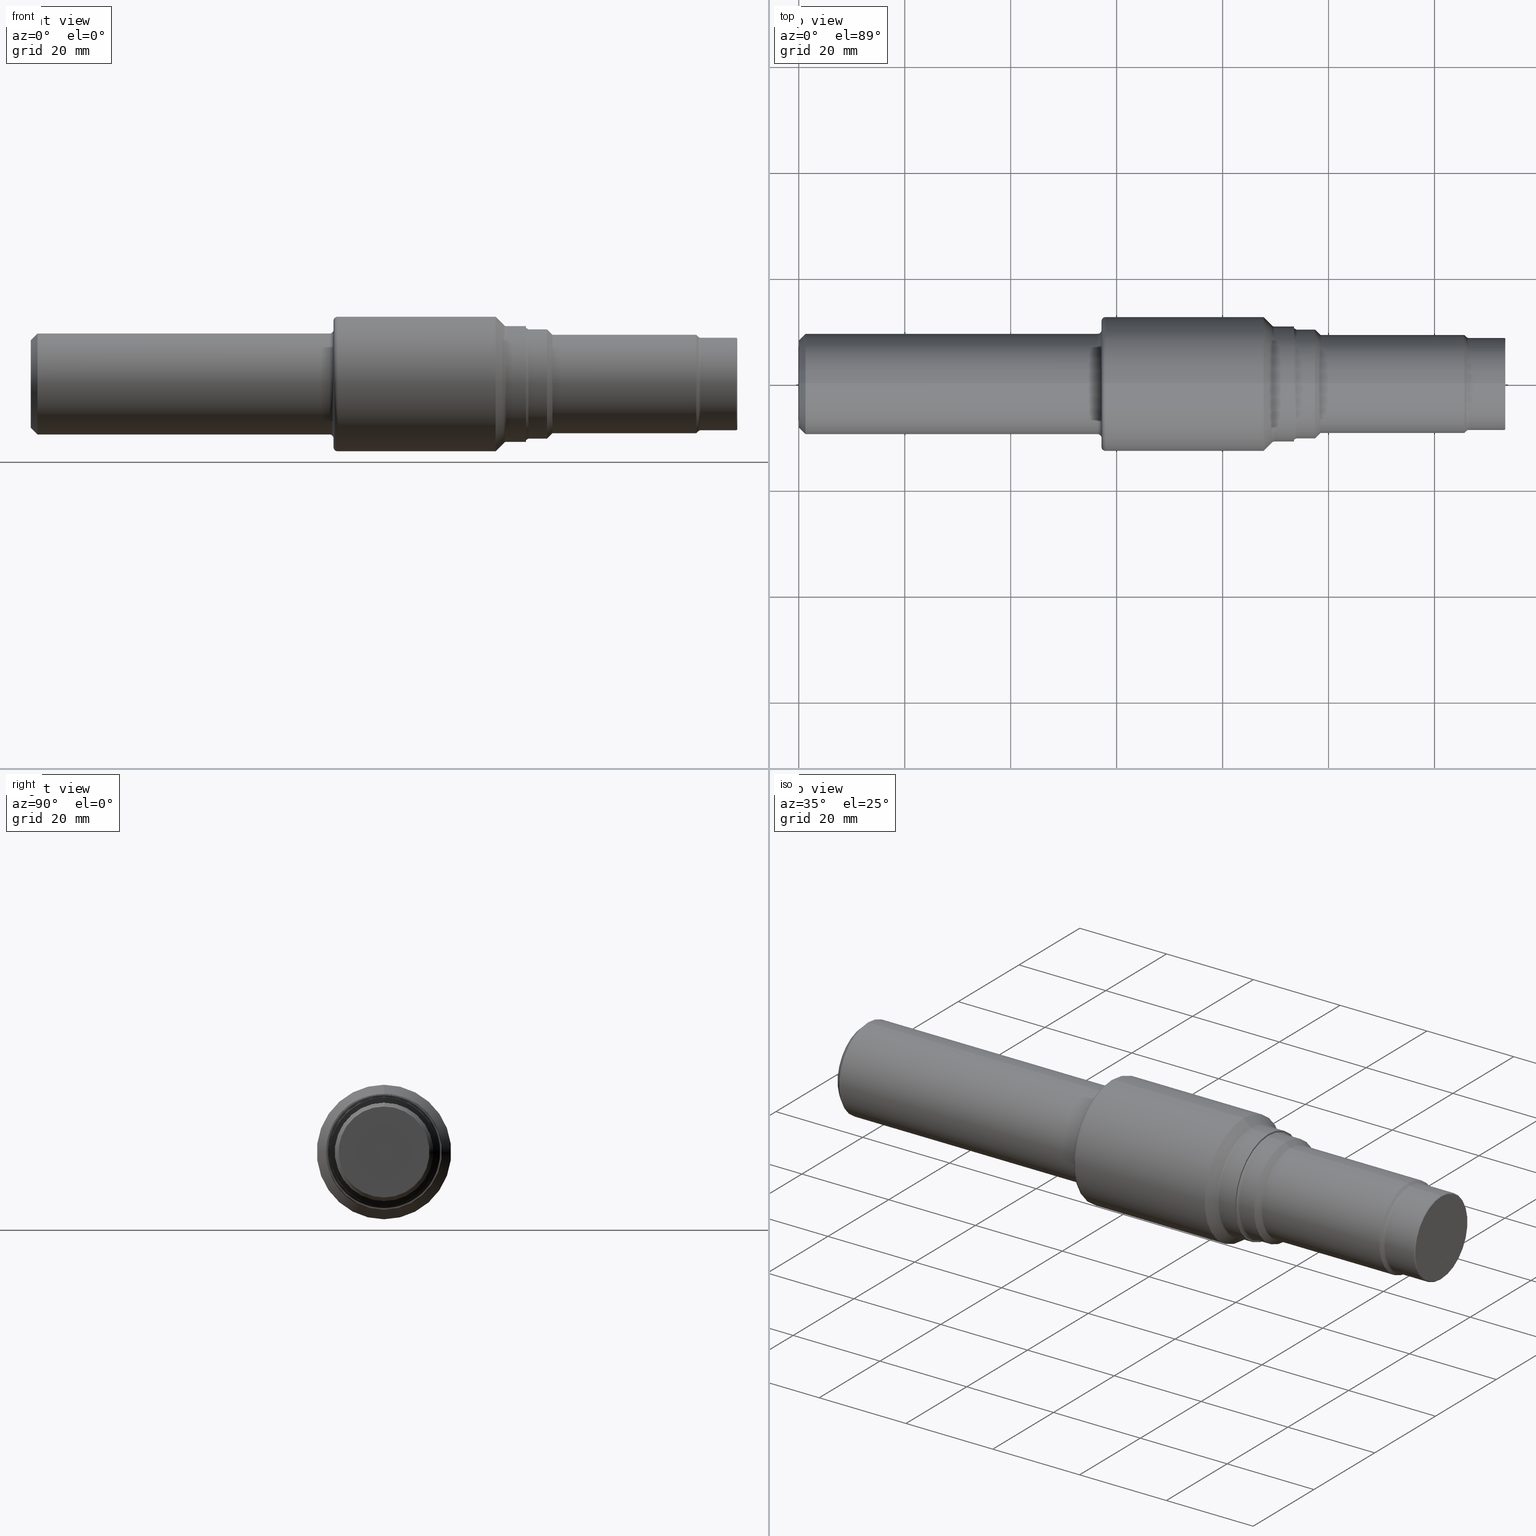
[diagram: canonical four-view strip — front | top / right | iso, engineering-drawing reading convention]
A machine part, canonical four-view strip (front | top / right | iso — engineering-drawing reading convention). The complete STEP part file that produces these views, byte-faithful:
ISO-10303-21;
HEADER;
FILE_DESCRIPTION (( 'STEP AP214' ),
    '1' );
FILE_NAME ('T-10A-FINISH-X8.STEP',
    '2022-06-16T17:10:45',
    ( '' ),
    ( '' ),
    'SwSTEP 2.0',
    'SolidWorks 2020',
    '' );
FILE_SCHEMA (( 'AUTOMOTIVE_DESIGN' ));
ENDSEC;

DATA;
#1 = DIRECTION ( 'NONE',  ( 0.000000000000000000, 0.000000000000000000, 1.000000000000000000 ) ) ;
#2 = CIRCLE ( 'NONE', #85, 0.2049999999999999323 ) ;
#3 = VECTOR ( 'NONE', #396, 39.37007874015748143 ) ;
#4 = DIRECTION ( 'NONE',  ( 0.000000000000000000, 0.000000000000000000, 1.000000000000000000 ) ) ;
#5 = LINE ( 'NONE', #144, #968 ) ;
#6 = AXIS2_PLACEMENT_3D ( 'NONE', #963, #235, #887 ) ;
#7 = CIRCLE ( 'NONE', #990, 0.3748500000000000165 ) ;
#8 = DIRECTION ( 'NONE',  ( -1.000000000000000000, -0.000000000000000000, -0.000000000000000000 ) ) ;
#9 = DIRECTION ( 'NONE',  ( 0.000000000000000000, 0.000000000000000000, 1.000000000000000000 ) ) ;
#10 = DIRECTION ( 'NONE',  ( 0.000000000000000000, 0.000000000000000000, 1.000000000000000000 ) ) ;
#11 = EDGE_LOOP ( 'NONE', ( #627, #724, #491, #256 ) ) ;
#12 = CARTESIAN_POINT ( 'NONE',  ( 3.533612698372207817, 0.000000000000000000, 0.000000000000000000 ) ) ;
#13 = CARTESIAN_POINT ( 'NONE',  ( 0.000000000000000000, 0.000000000000000000, 0.000000000000000000 ) ) ;
#14 = EDGE_CURVE ( 'NONE', #310, #928, #464, .T. ) ;
#15 = VERTEX_POINT ( 'NONE', #327 ) ;
#16 = DIRECTION ( 'NONE',  ( -0.000000000000000000, 0.000000000000000000, 1.000000000000000000 ) ) ;
#17 = ADVANCED_FACE ( 'NONE', ( #696 ), #225, .T. ) ;
#18 = CIRCLE ( 'NONE', #922, 0.4164999999999999813 ) ;
#19 = DIRECTION ( 'NONE',  ( -0.7071067811865612285, 8.659560562354763993E-17, -0.7071067811865336949 ) ) ;
#20 = VERTEX_POINT ( 'NONE', #307 ) ;
#21 = ADVANCED_FACE ( 'NONE', ( #716 ), #946, .F. ) ;
#22 = AXIS2_PLACEMENT_3D ( 'NONE', #133, #712, #951 ) ;
#23 = CIRCLE ( 'NONE', #925, 0.3503436508138960681 ) ;
#24 = CARTESIAN_POINT ( 'NONE',  ( 2.250000000000000000, 0.000000000000000000, 0.4048500000000000432 ) ) ;
#25 = ORIENTED_EDGE ( 'NONE', *, *, #247, .T. ) ;
#26 = EDGE_LOOP ( 'NONE', ( #91, #395 ) ) ;
#27 = EDGE_CURVE ( 'NONE', #514, #718, #324, .T. ) ;
#28 = DIRECTION ( 'NONE',  ( 0.000000000000000000, 0.000000000000000000, 1.000000000000000000 ) ) ;
#29 = DIRECTION ( 'NONE',  ( 0.000000000000000000, 0.000000000000000000, 1.000000000000000000 ) ) ;
#30 = EDGE_LOOP ( 'NONE', ( #518, #77 ) ) ;
#31 = ORIENTED_EDGE ( 'NONE', *, *, #1017, .T. ) ;
#32 = FACE_OUTER_BOUND ( 'NONE', #524, .T. ) ;
#33 = EDGE_CURVE ( 'NONE', #15, #380, #139, .T. ) ;
#34 = DIRECTION ( 'NONE',  ( -0.8660254037844304920, 6.123233995736938599E-17, -0.5000000000000140998 ) ) ;
#35 = CONICAL_SURFACE ( 'NONE', #187, 0.3503436508138960681, 0.7853981633974025378 ) ;
#36 = CARTESIAN_POINT ( 'NONE',  ( 0.000000000000000000, 0.000000000000000000, 0.000000000000000000 ) ) ;
#37 = CIRCLE ( 'NONE', #408, 0.4298999999999997823 ) ;
#38 = FACE_OUTER_BOUND ( 'NONE', #98, .T. ) ;
#39 = AXIS2_PLACEMENT_3D ( 'NONE', #629, #132, #47 ) ;
#40 = CARTESIAN_POINT ( 'NONE',  ( 5.250000000000000000, 0.000000000000000000, 0.000000000000000000 ) ) ;
#41 = ORIENTED_EDGE ( 'NONE', *, *, #657, .T. ) ;
#42 = DIRECTION ( 'NONE',  ( -1.000000000000000000, -0.000000000000000000, -0.000000000000000000 ) ) ;
#43 = DIRECTION ( 'NONE',  ( 0.000000000000000000, 0.000000000000000000, 1.000000000000000000 ) ) ;
#44 = EDGE_CURVE ( 'NONE', #934, #20, #763, .T. ) ;
#45 = SURFACE_STYLE_USAGE ( .BOTH. , #210 ) ;
#46 = DIRECTION ( 'NONE',  ( 0.000000000000000000, 0.000000000000000000, 1.000000000000000000 ) ) ;
#47 = DIRECTION ( 'NONE',  ( 0.000000000000000000, -1.224646799147353454E-16, 1.000000000000000000 ) ) ;
#48 = DIRECTION ( 'NONE',  ( 0.000000000000000000, 0.000000000000000000, 1.000000000000000000 ) ) ;
#49 = ADVANCED_FACE ( 'NONE', ( #865 ), #218, .T. ) ;
#50 = ORIENTED_EDGE ( 'NONE', *, *, #1006, .T. ) ;
#51 = LINE ( 'NONE', #932, #535 ) ;
#52 = DIRECTION ( 'NONE',  ( 0.000000000000000000, -1.000000000000000000, 0.000000000000000000 ) ) ;
#53 = CLOSED_SHELL ( 'NONE', ( #570, #89, #394, #93, #49, #173, #434, #127, #455, #276, #1035, #644, #134, #490, #769, #975, #342, #519, #21, #663, #424, #321, #854, #959, #590, #184, #900, #313, #506, #485, #619, #886, #784, #470, #740, #76, #214, #17, #386 ) ) ;
#54 = PRESENTATION_LAYER_ASSIGNMENT (  '', '', ( #971 ) ) ;
#55 = DIRECTION ( 'NONE',  ( -1.000000000000000000, -0.000000000000000000, -0.000000000000000000 ) ) ;
#56 = AXIS2_PLACEMENT_3D ( 'NONE', #729, #651, #16 ) ;
#57 = ORIENTED_EDGE ( 'NONE', *, *, #64, .F. ) ;
#58 = CYLINDRICAL_SURFACE ( 'NONE', #405, 0.3439000000000000945 ) ;
#59 = EDGE_CURVE ( 'NONE', #1011, #727, #362, .T. ) ;
#60 = CARTESIAN_POINT ( 'NONE',  ( 0.05000000000000000278, 0.000000000000000000, 0.000000000000000000 ) ) ;
#61 = EDGE_LOOP ( 'NONE', ( #650, #379 ) ) ;
#62 = CYLINDRICAL_SURFACE ( 'NONE', #154, 0.4063999999999999835 ) ;
#63 = DIRECTION ( 'NONE',  ( -1.000000000000000000, -0.000000000000000000, -0.000000000000000000 ) ) ;
#64 = EDGE_CURVE ( 'NONE', #883, #172, #102, .T. ) ;
#65 = DIRECTION ( 'NONE',  ( -1.000000000000000000, -0.000000000000000000, -0.000000000000000000 ) ) ;
#66 = VERTEX_POINT ( 'NONE', #467 ) ;
#67 = CARTESIAN_POINT ( 'NONE',  ( 0.05000000000000000278, 4.590588526603853748E-17, 0.3748500000000000165 ) ) ;
#68 = CARTESIAN_POINT ( 'NONE',  ( 5.250000000000000000, 0.000000000000000000, 0.000000000000000000 ) ) ;
#69 = CIRCLE ( 'NONE', #856, 0.3503436508138960681 ) ;
#70 = EDGE_CURVE ( 'NONE', #73, #708, #818, .T. ) ;
#71 = AXIS2_PLACEMENT_3D ( 'NONE', #819, #640, #979 ) ;
#72 = AXIS2_PLACEMENT_3D ( 'NONE', #515, #189, #824 ) ;
#73 = VERTEX_POINT ( 'NONE', #128 ) ;
#74 = CARTESIAN_POINT ( 'NONE',  ( 4.962156349186106041, 4.290472305708357954E-17, -0.3503436508138960681 ) ) ;
#75 = DIRECTION ( 'NONE',  ( -1.000000000000000000, -0.000000000000000000, -0.000000000000000000 ) ) ;
#76 = ADVANCED_FACE ( 'NONE', ( #614 ), #255, .F. ) ;
#77 = ORIENTED_EDGE ( 'NONE', *, *, #70, .F. ) ;
#78 = CARTESIAN_POINT ( 'NONE',  ( 3.680500000000000327, 0.000000000000000000, 0.4164999999999999813 ) ) ;
#79 = DIRECTION ( 'NONE',  ( 0.000000000000000000, 0.000000000000000000, 1.000000000000000000 ) ) ;
#80 = CARTESIAN_POINT ( 'NONE',  ( 3.518056349186103660, 0.000000000000000000, 0.000000000000000000 ) ) ;
#81 = MECHANICAL_DESIGN_GEOMETRIC_PRESENTATION_REPRESENTATION (  '', ( #513 ), #964 ) ;
#82 = DIRECTION ( 'NONE',  ( 0.000000000000000000, 0.000000000000000000, 1.000000000000000000 ) ) ;
#83 = FACE_OUTER_BOUND ( 'NONE', #479, .T. ) ;
#84 = CARTESIAN_POINT ( 'NONE',  ( 3.836500000000000465, 4.976964591734843260E-17, -0.4063999999999999835 ) ) ;
#85 = AXIS2_PLACEMENT_3D ( 'NONE', #299, #222, #46 ) ;
#86 = AXIS2_PLACEMENT_3D ( 'NONE', #1029, #557, #1022 ) ;
#87 = DIRECTION ( 'NONE',  ( 0.000000000000000000, 0.000000000000000000, 1.000000000000000000 ) ) ;
#88 = CARTESIAN_POINT ( 'NONE',  ( 3.680500000000000327, 0.000000000000000000, 0.000000000000000000 ) ) ;
#89 = ADVANCED_FACE ( 'NONE', ( #774 ), #454, .T. ) ;
#90 = FACE_OUTER_BOUND ( 'NONE', #859, .T. ) ;
#91 = ORIENTED_EDGE ( 'NONE', *, *, #142, .T. ) ;
#92 = CARTESIAN_POINT ( 'NONE',  ( 2.220000000000000195, 4.774285546475956938E-17, -0.3748500000000000165 ) ) ;
#93 = ADVANCED_FACE ( 'NONE', ( #700 ), #688, .T. ) ;
#94 =( CONVERSION_BASED_UNIT ( 'INCH', #848 ) LENGTH_UNIT ( ) NAMED_UNIT ( #429 ) );
#95 = PRODUCT_DEFINITION_FORMATION_WITH_SPECIFIED_SOURCE ( 'ANY', '', #776, .NOT_KNOWN. ) ;
#96 = ORIENTED_EDGE ( 'NONE', *, *, #693, .F. ) ;
#97 = DIRECTION ( 'NONE',  ( -1.000000000000000000, 0.000000000000000000, -0.000000000000000000 ) ) ;
#98 = EDGE_LOOP ( 'NONE', ( #896, #130, #642, #462 ) ) ;
#99 = EDGE_CURVE ( 'NONE', #832, #681, #667, .T. ) ;
#100 = DIRECTION ( 'NONE',  ( -0.000000000000000000, 1.000000000000000000, 1.224646799147353207E-16 ) ) ;
#101 = ORIENTED_EDGE ( 'NONE', *, *, #525, .F. ) ;
#102 = CIRCLE ( 'NONE', #86, 0.3659999999999999920 ) ;
#103 = AXIS2_PLACEMENT_3D ( 'NONE', #259, #339, #836 ) ;
#104 = DIRECTION ( 'NONE',  ( 0.000000000000000000, 0.000000000000000000, -1.000000000000000000 ) ) ;
#105 = CARTESIAN_POINT ( 'NONE',  ( 0.000000000000000000, 0.000000000000000000, 0.000000000000000000 ) ) ;
#106 = ORIENTED_EDGE ( 'NONE', *, *, #511, .F. ) ;
#107 = EDGE_CURVE ( 'NONE', #935, #595, #445, .T. ) ;
#108 = EDGE_LOOP ( 'NONE', ( #998, #509, #41, #301 ) ) ;
#109 = DIRECTION ( 'NONE',  ( 0.000000000000000000, 0.000000000000000000, 1.000000000000000000 ) ) ;
#110 = CARTESIAN_POINT ( 'NONE',  ( 3.697993713156445317, 4.976964591734843260E-17, -0.4063999999999999835 ) ) ;
#111 = SURFACE_STYLE_FILL_AREA ( #438 ) ;
#112 = EDGE_LOOP ( 'NONE', ( #271, #370, #384, #1009 ) ) ;
#113 = ORIENTED_EDGE ( 'NONE', *, *, #142, .F. ) ;
#114 = CARTESIAN_POINT ( 'NONE',  ( 3.680500000000000327, 0.000000000000000000, 0.000000000000000000 ) ) ;
#115 = DIRECTION ( 'NONE',  ( 0.000000000000000000, 0.000000000000000000, 1.000000000000000000 ) ) ;
#116 = ORIENTED_EDGE ( 'NONE', *, *, #59, .F. ) ;
#117 = AXIS2_PLACEMENT_3D ( 'NONE', #868, #1013, #278 ) ;
#118 = AXIS2_PLACEMENT_3D ( 'NONE', #588, #831, #343 ) ;
#119 = DIRECTION ( 'NONE',  ( -0.7071067811865425767, 8.659560562354993255E-17, -0.7071067811865524577 ) ) ;
#120 = AXIS2_PLACEMENT_3D ( 'NONE', #12, #603, #929 ) ;
#121 = EDGE_CURVE ( 'NONE', #433, #375, #69, .T. ) ;
#122 = CIRCLE ( 'NONE', #721, 0.03000000000000002318 ) ;
#123 = DIRECTION ( 'NONE',  ( 0.000000000000000000, 0.000000000000000000, -1.000000000000000000 ) ) ;
#124 = ORIENTED_EDGE ( 'NONE', *, *, #404, .T. ) ;
#125 = DIRECTION ( 'NONE',  ( 0.000000000000000000, 0.000000000000000000, 1.000000000000000000 ) ) ;
#126 = CARTESIAN_POINT ( 'NONE',  ( 2.220000000000000195, 0.000000000000000000, 0.4048500000000000432 ) ) ;
#127 = ADVANCED_FACE ( 'NONE', ( #821 ), #565, .T. ) ;
#128 = CARTESIAN_POINT ( 'NONE',  ( 3.680500000000000327, 5.264756589534471859E-17, -0.4298999999999999488 ) ) ;
#129 = EDGE_CURVE ( 'NONE', #969, #786, #205, .T. ) ;
#130 = ORIENTED_EDGE ( 'NONE', *, *, #511, .T. ) ;
#131 = DIRECTION ( 'NONE',  ( 1.000000000000000000, 0.000000000000000000, 0.000000000000000000 ) ) ;
#132 = DIRECTION ( 'NONE',  ( -0.000000000000000000, 1.000000000000000000, 1.224646799147353207E-16 ) ) ;
#133 = CARTESIAN_POINT ( 'NONE',  ( 0.000000000000000000, 0.000000000000000000, 0.000000000000000000 ) ) ;
#134 = ADVANCED_FACE ( 'NONE', ( #165 ), #748, .T. ) ;
#135 = ORIENTED_EDGE ( 'NONE', *, *, #99, .F. ) ;
#136 = CARTESIAN_POINT ( 'NONE',  ( 0.000000000000000000, 0.000000000000000000, 0.000000000000000000 ) ) ;
#137 = CARTESIAN_POINT ( 'NONE',  ( 0.000000000000000000, 4.976964591734843260E-17, -0.4063999999999999835 ) ) ;
#138 = AXIS2_PLACEMENT_3D ( 'NONE', #746, #912, #178 ) ;
#139 = CIRCLE ( 'NONE', #733, 0.4298999999999997823 ) ;
#140 = AXIS2_PLACEMENT_3D ( 'NONE', #80, #500, #730 ) ;
#141 = CIRCLE ( 'NONE', #39, 0.02200000000000026934 ) ;
#142 = EDGE_CURVE ( 'NONE', #921, #193, #156, .T. ) ;
#143 = VERTEX_POINT ( 'NONE', #976 ) ;
#144 = CARTESIAN_POINT ( 'NONE',  ( 0.000000000000000000, 4.211560342267749201E-17, -0.3439000000000000945 ) ) ;
#145 = DIRECTION ( 'NONE',  ( -1.000000000000000000, -0.000000000000000000, -0.000000000000000000 ) ) ;
#146 = DIRECTION ( 'NONE',  ( 1.000000000000000000, 0.000000000000000000, 0.000000000000000000 ) ) ;
#147 = ORIENTED_EDGE ( 'NONE', *, *, #360, .F. ) ;
#148 = CARTESIAN_POINT ( 'NONE',  ( 3.876900000000002233, 0.000000000000000000, 0.3659999999999999920 ) ) ;
#149 = CARTESIAN_POINT ( 'NONE',  ( 3.533612698372207817, 0.000000000000000000, 0.000000000000000000 ) ) ;
#150 = DIRECTION ( 'NONE',  ( -1.000000000000000000, -0.000000000000000000, -0.000000000000000000 ) ) ;
#151 = EDGE_LOOP ( 'NONE', ( #694, #116, #124, #244 ) ) ;
#152 = DIRECTION ( 'NONE',  ( -1.000000000000000000, -0.000000000000000000, -0.000000000000000000 ) ) ;
#153 = EDGE_CURVE ( 'NONE', #73, #15, #393, .T. ) ;
#154 = AXIS2_PLACEMENT_3D ( 'NONE', #732, #469, #1046 ) ;
#155 = DIRECTION ( 'NONE',  ( -1.000000000000000000, -0.000000000000000000, -0.000000000000000000 ) ) ;
#156 = CIRCLE ( 'NONE', #888, 0.4164999999999999813 ) ;
#157 = VECTOR ( 'NONE', #805, 39.37007874015748143 ) ;
#158 = VECTOR ( 'NONE', #34, 39.37007874015748143 ) ;
#159 = ORIENTED_EDGE ( 'NONE', *, *, #353, .F. ) ;
#160 = CARTESIAN_POINT ( 'NONE',  ( 0.05000000000000000278, 4.590588526603853748E-17, -0.3748500000000000165 ) ) ;
#161 = CARTESIAN_POINT ( 'NONE',  ( 2.250000000000000000, 0.000000000000000000, 0.000000000000000000 ) ) ;
#162 = EDGE_LOOP ( 'NONE', ( #754, #366, #807, #428 ) ) ;
#163 = CARTESIAN_POINT ( 'NONE',  ( 0.000000000000000000, 4.482207284879313290E-17, -0.3659999999999999920 ) ) ;
#164 = DIRECTION ( 'NONE',  ( 0.000000000000000000, 0.000000000000000000, 1.000000000000000000 ) ) ;
#165 = FACE_OUTER_BOUND ( 'NONE', #423, .T. ) ;
#166 = EDGE_LOOP ( 'NONE', ( #753, #200, #25, #554 ) ) ;
#167 = EDGE_CURVE ( 'NONE', #935, #380, #207, .T. ) ;
#168 = CARTESIAN_POINT ( 'NONE',  ( 3.680500000000000327, 0.000000000000000000, 0.000000000000000000 ) ) ;
#169 = VECTOR ( 'NONE', #813, 39.37007874015748143 ) ;
#170 = CIRCLE ( 'NONE', #762, 0.3748500000000000165 ) ;
#171 = CIRCLE ( 'NONE', #138, 0.4063999999999999835 ) ;
#172 = VERTEX_POINT ( 'NONE', #899 ) ;
#173 = ADVANCED_FACE ( 'NONE', ( #90 ), #702, .T. ) ;
#174 = AXIS2_PLACEMENT_3D ( 'NONE', #861, #453, #292 ) ;
#175 = CARTESIAN_POINT ( 'NONE',  ( 4.946500000000000341, 0.000000000000000000, 0.3659999999999999920 ) ) ;
#176 = FILL_AREA_STYLE_COLOUR ( '', #377 ) ;
#177 = ORIENTED_EDGE ( 'NONE', *, *, #711, .T. ) ;
#178 = DIRECTION ( 'NONE',  ( 0.000000000000000000, 0.000000000000000000, 1.000000000000000000 ) ) ;
#179 = CYLINDRICAL_SURFACE ( 'NONE', #425, 0.4063999999999999835 ) ;
#180 =( NAMED_UNIT ( * ) PLANE_ANGLE_UNIT ( ) SI_UNIT ( $, .RADIAN. ) );
#181 = ORIENTED_EDGE ( 'NONE', *, *, #14, .T. ) ;
#182 = CARTESIAN_POINT ( 'NONE',  ( 0.000000000000000000, 2.510525938252073446E-17, -0.2049999999999999323 ) ) ;
#183 = DIRECTION ( 'NONE',  ( 0.000000000000000000, 0.000000000000000000, 1.000000000000000000 ) ) ;
#184 = ADVANCED_FACE ( 'NONE', ( #967 ), #585, .T. ) ;
#185 = ORIENTED_EDGE ( 'NONE', *, *, #796, .F. ) ;
#186 =( LENGTH_UNIT ( ) NAMED_UNIT ( * ) SI_UNIT ( $, .METRE. ) );
#187 = AXIS2_PLACEMENT_3D ( 'NONE', #970, #245, #897 ) ;
#188 = EDGE_LOOP ( 'NONE', ( #221, #521, #611, #789 ) ) ;
#189 = DIRECTION ( 'NONE',  ( -0.000000000000000000, 1.000000000000000000, 1.224646799147353207E-16 ) ) ;
#190 = CIRCLE ( 'NONE', #858, 0.3379000000000003667 ) ;
#191 = DIMENSIONAL_EXPONENTS ( 1.000000000000000000, 0.000000000000000000, 0.000000000000000000, 0.000000000000000000, 0.000000000000000000, 0.000000000000000000, 0.000000000000000000 ) ;
#192 = LINE ( 'NONE', #110, #158 ) ;
#193 = VERTEX_POINT ( 'NONE', #412 ) ;
#194 = ORIENTED_EDGE ( 'NONE', *, *, #657, .F. ) ;
#195 = CARTESIAN_POINT ( 'NONE',  ( 3.533612698372207817, 0.000000000000000000, 0.000000000000000000 ) ) ;
#196 = CARTESIAN_POINT ( 'NONE',  ( 2.220000000000000195, 0.000000000000000000, 0.3748500000000000165 ) ) ;
#197 = ORIENTED_EDGE ( 'NONE', *, *, #996, .T. ) ;
#198 = ORIENTED_EDGE ( 'NONE', *, *, #336, .F. ) ;
#199 = EDGE_CURVE ( 'NONE', #375, #433, #23, .T. ) ;
#200 = ORIENTED_EDGE ( 'NONE', *, *, #121, .F. ) ;
#201 = DIRECTION ( 'NONE',  ( -1.000000000000000000, 0.000000000000000000, -0.000000000000000000 ) ) ;
#202 = ORIENTED_EDGE ( 'NONE', *, *, #59, .T. ) ;
#203 = EDGE_LOOP ( 'NONE', ( #106, #889, #843, #664 ) ) ;
#204 = LINE ( 'NONE', #449, #665 ) ;
#205 = CIRCLE ( 'NONE', #482, 0.4063999999999999835 ) ;
#206 = EDGE_CURVE ( 'NONE', #310, #832, #903, .T. ) ;
#207 = CIRCLE ( 'NONE', #954, 0.02200000000000026934 ) ;
#208 = DIRECTION ( 'NONE',  ( 0.000000000000000000, 0.000000000000000000, 1.000000000000000000 ) ) ;
#209 = CIRCLE ( 'NONE', #502, 0.02999999999999995379 ) ;
#210 = SURFACE_SIDE_STYLE ('',( #111 ) ) ;
#211 = VERTEX_POINT ( 'NONE', #84 ) ;
#212 = ORIENTED_EDGE ( 'NONE', *, *, #404, .F. ) ;
#213 = CARTESIAN_POINT ( 'NONE',  ( 5.243999999999999773, 4.211560342267746736E-17, -0.3438999999999999835 ) ) ;
#214 = ADVANCED_FACE ( 'NONE', ( #409 ), #484, .T. ) ;
#215 = DIRECTION ( 'NONE',  ( 0.000000000000000000, 0.000000000000000000, 1.000000000000000000 ) ) ;
#216 = FACE_OUTER_BOUND ( 'NONE', #369, .T. ) ;
#217 = DIRECTION ( 'NONE',  ( -1.000000000000000000, -0.000000000000000000, -0.000000000000000000 ) ) ;
#218 = CYLINDRICAL_SURFACE ( 'NONE', #556, 0.5000000000000000000 ) ;
#219 = EDGE_CURVE ( 'NONE', #638, #1026, #616, .T. ) ;
#220 = EDGE_LOOP ( 'NONE', ( #875, #197, #579, #318 ) ) ;
#221 = ORIENTED_EDGE ( 'NONE', *, *, #796, .T. ) ;
#222 = DIRECTION ( 'NONE',  ( -1.000000000000000000, -0.000000000000000000, -0.000000000000000000 ) ) ;
#223 = LINE ( 'NONE', #137, #600 ) ;
#224 = VECTOR ( 'NONE', #419, 39.37007874015748143 ) ;
#225 = CONICAL_SURFACE ( 'NONE', #987, 0.3748500000000000165, 0.7853981633974463916 ) ;
#226 = DIRECTION ( 'NONE',  ( 0.000000000000000000, 0.000000000000000000, 1.000000000000000000 ) ) ;
#227 = AXIS2_PLACEMENT_3D ( 'NONE', #105, #354, #268 ) ;
#228 = EDGE_LOOP ( 'NONE', ( #31, #744, #198, #873 ) ) ;
#229 = LINE ( 'NONE', #163, #870 ) ;
#230 = FACE_OUTER_BOUND ( 'NONE', #878, .T. ) ;
#231 = CARTESIAN_POINT ( 'NONE',  ( 0.000000000000000000, 0.000000000000000000, 0.000000000000000000 ) ) ;
#232 = ORIENTED_EDGE ( 'NONE', *, *, #711, .F. ) ;
#233 = FACE_OUTER_BOUND ( 'NONE', #228, .T. ) ;
#234 = EDGE_CURVE ( 'NONE', #935, #143, #882, .T. ) ;
#235 = DIRECTION ( 'NONE',  ( 0.000000000000000000, -1.000000000000000000, 0.000000000000000000 ) ) ;
#236 = ORIENTED_EDGE ( 'NONE', *, *, #27, .T. ) ;
#237 = CARTESIAN_POINT ( 'NONE',  ( 3.518056349186103660, 0.000000000000000000, 0.000000000000000000 ) ) ;
#238 = UNCERTAINTY_MEASURE_WITH_UNIT (LENGTH_MEASURE( 1.000000000000000082E-05 ), #782, 'distance_accuracy_value', 'NONE');
#239 = AXIS2_PLACEMENT_3D ( 'NONE', #411, #982, #252 ) ;
#240 = EDGE_CURVE ( 'NONE', #977, #969, #797, .T. ) ;
#241 = AXIS2_PLACEMENT_3D ( 'NONE', #237, #311, #643 ) ;
#242 = DIRECTION ( 'NONE',  ( -1.000000000000000000, -0.000000000000000000, -0.000000000000000000 ) ) ;
#243 = CONICAL_SURFACE ( 'NONE', #1037, 0.4063999999999999835, 0.5235987755983151359 ) ;
#244 = ORIENTED_EDGE ( 'NONE', *, *, #44, .T. ) ;
#245 = DIRECTION ( 'NONE',  ( -1.000000000000000000, -0.000000000000000000, -0.000000000000000000 ) ) ;
#246 = CARTESIAN_POINT ( 'NONE',  ( 3.533612698372207817, 0.000000000000000000, 0.4519000000000000239 ) ) ;
#247 = EDGE_CURVE ( 'NONE', #433, #718, #291, .T. ) ;
#248 = ORIENTED_EDGE ( 'NONE', *, *, #309, .T. ) ;
#249 = DIRECTION ( 'NONE',  ( 0.000000000000000000, -1.000000000000000000, 0.000000000000000000 ) ) ;
#250 = EDGE_CURVE ( 'NONE', #593, #823, #635, .T. ) ;
#251 = EDGE_LOOP ( 'NONE', ( #738, #840 ) ) ;
#252 = DIRECTION ( 'NONE',  ( 0.000000000000000000, 0.000000000000000000, 1.000000000000000000 ) ) ;
#253 = CARTESIAN_POINT ( 'NONE',  ( 0.000000000000000000, 0.000000000000000000, 0.000000000000000000 ) ) ;
#254 = VECTOR ( 'NONE', #350, 39.37007874015748143 ) ;
#255 = TOROIDAL_SURFACE ( 'NONE', #341, 0.4048500000000000432, 0.02999999999999998848 ) ;
#256 = ORIENTED_EDGE ( 'NONE', *, *, #44, .F. ) ;
#257 = VECTOR ( 'NONE', #834, 39.37007874015748143 ) ;
#258 = CARTESIAN_POINT ( 'NONE',  ( 0.05000000000000000278, 0.000000000000000000, 0.000000000000000000 ) ) ;
#259 = CARTESIAN_POINT ( 'NONE',  ( 2.250000000000000000, 0.000000000000000000, 0.000000000000000000 ) ) ;
#260 = EDGE_LOOP ( 'NONE', ( #356, #617 ) ) ;
#261 = DIRECTION ( 'NONE',  ( 0.000000000000000000, 0.000000000000000000, 1.000000000000000000 ) ) ;
#262 = EDGE_CURVE ( 'NONE', #595, #935, #766, .T. ) ;
#263 = CARTESIAN_POINT ( 'NONE',  ( 5.250000000000000000, 0.000000000000000000, 0.2049999999999999323 ) ) ;
#264 = ORIENTED_EDGE ( 'NONE', *, *, #953, .F. ) ;
#265 = CONICAL_SURFACE ( 'NONE', #530, 0.3659999999999999920, 0.7853981633974288501 ) ;
#266 = EDGE_LOOP ( 'NONE', ( #357, #185, #811, #844 ) ) ;
#267 = CARTESIAN_POINT ( 'NONE',  ( 0.000000000000000000, 4.590588526603853748E-17, -0.3748500000000000165 ) ) ;
#268 = DIRECTION ( 'NONE',  ( 0.000000000000000000, 0.000000000000000000, 1.000000000000000000 ) ) ;
#269 = CIRCLE ( 'NONE', #517, 0.5000000000000000000 ) ;
#270 = ORIENTED_EDGE ( 'NONE', *, *, #336, .T. ) ;
#271 = ORIENTED_EDGE ( 'NONE', *, *, #599, .T. ) ;
#272 = AXIS2_PLACEMENT_3D ( 'NONE', #40, #609, #4 ) ;
#273 = DIRECTION ( 'NONE',  ( 0.000000000000000000, 0.000000000000000000, 1.000000000000000000 ) ) ;
#274 = CONICAL_SURFACE ( 'NONE', #344, 0.4063999999999999835, 0.5235987755983151359 ) ;
#275 = ORIENTED_EDGE ( 'NONE', *, *, #129, .F. ) ;
#276 = ADVANCED_FACE ( 'NONE', ( #825 ), #179, .T. ) ;
#277 = EDGE_LOOP ( 'NONE', ( #181, #337 ) ) ;
#278 = DIRECTION ( 'NONE',  ( 0.000000000000000000, 0.000000000000000000, 1.000000000000000000 ) ) ;
#279 = EDGE_LOOP ( 'NONE', ( #287, #692, #751, #486 ) ) ;
#280 = EDGE_CURVE ( 'NONE', #1026, #638, #569, .T. ) ;
#281 = ORIENTED_EDGE ( 'NONE', *, *, #374, .F. ) ;
#282 = ORIENTED_EDGE ( 'NONE', *, *, #153, .F. ) ;
#283 = FACE_BOUND ( 'NONE', #61, .T. ) ;
#284 = CARTESIAN_POINT ( 'NONE',  ( 4.962156349186106041, 4.290472305708355489E-17, -0.3503436508138958461 ) ) ;
#285 = CARTESIAN_POINT ( 'NONE',  ( 3.680500000000000327, 0.000000000000000000, 0.000000000000000000 ) ) ;
#286 = VECTOR ( 'NONE', #440, 39.37007874015748143 ) ;
#287 = ORIENTED_EDGE ( 'NONE', *, *, #1028, .F. ) ;
#288 = PLANE ( 'NONE',  #950 ) ;
#289 = AXIS2_PLACEMENT_3D ( 'NONE', #1044, #323, #980 ) ;
#290 = EDGE_CURVE ( 'NONE', #542, #960, #783, .T. ) ;
#291 = CIRCLE ( 'NONE', #6, 0.02199999999999972464 ) ;
#292 = DIRECTION ( 'NONE',  ( 0.000000000000000000, 0.000000000000000000, -1.000000000000000000 ) ) ;
#293 = ORIENTED_EDGE ( 'NONE', *, *, #250, .F. ) ;
#294 = DIRECTION ( 'NONE',  ( -1.000000000000000000, -0.000000000000000000, -0.000000000000000000 ) ) ;
#295 = MANIFOLD_SOLID_BREP ( 'Body', #53 ) ;
#296 = EDGE_CURVE ( 'NONE', #433, #542, #507, .T. ) ;
#297 = DIRECTION ( 'NONE',  ( 0.000000000000000000, 0.000000000000000000, 1.000000000000000000 ) ) ;
#298 = VERTEX_POINT ( 'NONE', #196 ) ;
#299 = CARTESIAN_POINT ( 'NONE',  ( 5.249900000000000233, 0.000000000000000000, 0.000000000000000000 ) ) ;
#300 = DIRECTION ( 'NONE',  ( -1.000000000000000000, -0.000000000000000000, -0.000000000000000000 ) ) ;
#301 = ORIENTED_EDGE ( 'NONE', *, *, #750, .F. ) ;
#302 = LINE ( 'NONE', #67, #632 ) ;
#303 = VECTOR ( 'NONE', #778, 39.37007874015748143 ) ;
#304 = AXIS2_PLACEMENT_3D ( 'NONE', #630, #877, #621 ) ;
#305 = DIRECTION ( 'NONE',  ( 0.000000000000000000, 0.000000000000000000, 1.000000000000000000 ) ) ;
#306 = AXIS2_PLACEMENT_3D ( 'NONE', #416, #743, #436 ) ;
#307 = CARTESIAN_POINT ( 'NONE',  ( 0.05000000000000000278, 0.000000000000000000, 0.3748500000000000165 ) ) ;
#308 = AXIS2_PLACEMENT_3D ( 'NONE', #253, #217, #208 ) ;
#309 = EDGE_CURVE ( 'NONE', #677, #402, #973, .T. ) ;
#310 = VERTEX_POINT ( 'NONE', #263 ) ;
#311 = DIRECTION ( 'NONE',  ( -1.000000000000000000, -0.000000000000000000, -0.000000000000000000 ) ) ;
#312 = CARTESIAN_POINT ( 'NONE',  ( 0.000000000000000000, 0.000000000000000000, 0.4063999999999999835 ) ) ;
#313 = ADVANCED_FACE ( 'NONE', ( #442 ), #274, .T. ) ;
#314 = VERTEX_POINT ( 'NONE', #516 ) ;
#315 = CARTESIAN_POINT ( 'NONE',  ( 5.250000000000000000, 0.000000000000000000, 0.000000000000000000 ) ) ;
#316 = FACE_OUTER_BOUND ( 'NONE', #30, .T. ) ;
#317 = CARTESIAN_POINT ( 'NONE',  ( 0.000000000000000000, 5.264756589534470011E-17, -0.4298999999999998933 ) ) ;
#318 = ORIENTED_EDGE ( 'NONE', *, *, #895, .F. ) ;
#319 = CARTESIAN_POINT ( 'NONE',  ( 3.518056349186103660, 0.000000000000000000, 0.4363436508138959224 ) ) ;
#320 = DIRECTION ( 'NONE',  ( -1.000000000000000000, -0.000000000000000000, -0.000000000000000000 ) ) ;
#321 = ADVANCED_FACE ( 'NONE', ( #761 ), #680, .T. ) ;
#322 = CIRCLE ( 'NONE', #421, 0.3248500000000002497 ) ;
#323 = DIRECTION ( 'NONE',  ( -1.000000000000000000, -0.000000000000000000, -0.000000000000000000 ) ) ;
#324 = CIRCLE ( 'NONE', #764, 0.3439000000000002610 ) ;
#325 = AXIS2_PLACEMENT_3D ( 'NONE', #561, #894, #1 ) ;
#326 = TOROIDAL_SURFACE ( 'NONE', #909, 0.4048500000000000432, 0.02999999999999998848 ) ;
#327 = CARTESIAN_POINT ( 'NONE',  ( 3.533612698372207817, 5.264756589534469394E-17, -0.4298999999999997823 ) ) ;
#328 = DIRECTION ( 'NONE',  ( -1.000000000000000000, -0.000000000000000000, -0.000000000000000000 ) ) ;
#329 = FACE_OUTER_BOUND ( 'NONE', #443, .T. ) ;
#330 = EDGE_CURVE ( 'NONE', #786, #193, #192, .T. ) ;
#331 = DIRECTION ( 'NONE',  ( 0.000000000000000000, 0.000000000000000000, 1.000000000000000000 ) ) ;
#332 = ORIENTED_EDGE ( 'NONE', *, *, #417, .F. ) ;
#333 = CARTESIAN_POINT ( 'NONE',  ( 4.977712698372209310, 4.211560342267750433E-17, -0.3439000000000002610 ) ) ;
#334 = DIRECTION ( 'NONE',  ( 0.000000000000000000, 0.000000000000000000, 1.000000000000000000 ) ) ;
#335 = COLOUR_RGB ( '',0.7529411764705882248, 0.7529411764705882248, 0.7529411764705882248 ) ;
#336 = EDGE_CURVE ( 'NONE', #402, #677, #955, .T. ) ;
#337 = ORIENTED_EDGE ( 'NONE', *, *, #913, .T. ) ;
#338 = CARTESIAN_POINT ( 'NONE',  ( 0.000000000000000000, 0.000000000000000000, 0.000000000000000000 ) ) ;
#339 = DIRECTION ( 'NONE',  ( -1.000000000000000000, -0.000000000000000000, -0.000000000000000000 ) ) ;
#340 = CIRCLE ( 'NONE', #117, 0.4699999999999999734 ) ;
#341 = AXIS2_PLACEMENT_3D ( 'NONE', #378, #373, #707 ) ;
#342 = ADVANCED_FACE ( 'NONE', ( #38 ), #364, .F. ) ;
#343 = DIRECTION ( 'NONE',  ( 0.000000000000000000, 0.000000000000000000, 1.000000000000000000 ) ) ;
#344 = AXIS2_PLACEMENT_3D ( 'NONE', #918, #757, #183 ) ;
#345 = ORIENTED_EDGE ( 'NONE', *, *, #374, .T. ) ;
#346 = CIRCLE ( 'NONE', #72, 0.03000000000000002318 ) ;
#347 = FACE_OUTER_BOUND ( 'NONE', #532, .T. ) ;
#348 = FILL_AREA_STYLE ('',( #176 ) ) ;
#349 = ORIENTED_EDGE ( 'NONE', *, *, #540, .T. ) ;
#350 = DIRECTION ( 'NONE',  ( -0.7071067811865636710, 8.659560562354735643E-17, -0.7071067811865313635 ) ) ;
#351 = ORIENTED_EDGE ( 'NONE', *, *, #199, .F. ) ;
#352 = LINE ( 'NONE', #182, #653 ) ;
#353 = EDGE_CURVE ( 'NONE', #298, #638, #209, .T. ) ;
#354 = DIRECTION ( 'NONE',  ( -1.000000000000000000, -0.000000000000000000, -0.000000000000000000 ) ) ;
#355 = ORIENTED_EDGE ( 'NONE', *, *, #723, .F. ) ;
#356 = ORIENTED_EDGE ( 'NONE', *, *, #1017, .F. ) ;
#357 = ORIENTED_EDGE ( 'NONE', *, *, #1006, .F. ) ;
#358 = LINE ( 'NONE', #267, #257 ) ;
#359 = CARTESIAN_POINT ( 'NONE',  ( 5.243999999999999773, 0.000000000000000000, 0.000000000000000000 ) ) ;
#360 = EDGE_CURVE ( 'NONE', #595, #15, #141, .T. ) ;
#361 = ORIENTED_EDGE ( 'NONE', *, *, #994, .T. ) ;
#362 = CIRCLE ( 'NONE', #22, 0.3248500000000002497 ) ;
#363 = CARTESIAN_POINT ( 'NONE',  ( 0.000000000000000000, 4.284426826817016740E-17, 0.3248500000000002497 ) ) ;
#364 = CYLINDRICAL_SURFACE ( 'NONE', #308, 0.2049999999999999323 ) ;
#365 = EDGE_CURVE ( 'NONE', #375, #514, #720, .T. ) ;
#366 = ORIENTED_EDGE ( 'NONE', *, *, #262, .T. ) ;
#367 = CARTESIAN_POINT ( 'NONE',  ( 3.697993713156445317, 4.976964591734843260E-17, -0.4063999999999999835 ) ) ;
#368 = CARTESIAN_POINT ( 'NONE',  ( 3.533612698372207817, 0.000000000000000000, 0.000000000000000000 ) ) ;
#369 = EDGE_LOOP ( 'NONE', ( #270, #647, #576, #596 ) ) ;
#370 = ORIENTED_EDGE ( 'NONE', *, *, #153, .T. ) ;
#371 = CARTESIAN_POINT ( 'NONE',  ( 0.000000000000000000, 0.000000000000000000, 0.3439000000000000945 ) ) ;
#372 = DIRECTION ( 'NONE',  ( -0.000000000000000000, 1.000000000000000000, 1.224646799147353207E-16 ) ) ;
#373 = DIRECTION ( 'NONE',  ( -1.000000000000000000, -0.000000000000000000, -0.000000000000000000 ) ) ;
#374 = EDGE_CURVE ( 'NONE', #211, #786, #223, .T. ) ;
#375 = VERTEX_POINT ( 'NONE', #284 ) ;
#376 = CARTESIAN_POINT ( 'NONE',  ( 2.279999999999999805, 0.000000000000000000, 0.000000000000000000 ) ) ;
#377 = COLOUR_RGB ( '',0.7529411764705882248, 0.7529411764705882248, 0.7529411764705882248 ) ;
#378 = CARTESIAN_POINT ( 'NONE',  ( 2.220000000000000195, 0.000000000000000000, 0.000000000000000000 ) ) ;
#379 = ORIENTED_EDGE ( 'NONE', *, *, #280, .F. ) ;
#380 = VERTEX_POINT ( 'NONE', #937 ) ;
#381 = DIRECTION ( 'NONE',  ( 0.000000000000000000, 0.000000000000000000, 1.000000000000000000 ) ) ;
#382 = CARTESIAN_POINT ( 'NONE',  ( 5.243999999999999773, 0.000000000000000000, 0.3438999999999999835 ) ) ;
#383 = DIRECTION ( 'NONE',  ( -1.000000000000000000, -0.000000000000000000, -0.000000000000000000 ) ) ;
#384 = ORIENTED_EDGE ( 'NONE', *, *, #625, .F. ) ;
#385 = DIRECTION ( 'NONE',  ( 0.000000000000000000, 0.000000000000000000, 1.000000000000000000 ) ) ;
#386 = ADVANCED_FACE ( 'NONE', ( #458 ), #548, .F. ) ;
#387 = PRODUCT_DEFINITION_SHAPE ( 'NONE', 'NONE',  #655 ) ;
#388 = EDGE_LOOP ( 'NONE', ( #281, #1038, #851, #437 ) ) ;
#389 = FACE_OUTER_BOUND ( 'NONE', #166, .T. ) ;
#390 = CIRCLE ( 'NONE', #481, 0.5000000000000000000 ) ;
#391 = AXIS2_PLACEMENT_3D ( 'NONE', #231, #155, #571 ) ;
#392 = AXIS2_PLACEMENT_3D ( 'NONE', #791, #63, #534 ) ;
#393 = LINE ( 'NONE', #317, #669 ) ;
#394 = ADVANCED_FACE ( 'NONE', ( #773 ), #326, .F. ) ;
#395 = ORIENTED_EDGE ( 'NONE', *, *, #723, .T. ) ;
#396 = DIRECTION ( 'NONE',  ( -0.7071067811865798802, 8.659560562354535963E-17, -0.7071067811865151542 ) ) ;
#397 = CARTESIAN_POINT ( 'NONE',  ( 4.962156349186106041, 0.000000000000000000, 0.000000000000000000 ) ) ;
#398 = ORIENTED_EDGE ( 'NONE', *, *, #290, .F. ) ;
#399 = EDGE_CURVE ( 'NONE', #675, #66, #190, .T. ) ;
#400 = CARTESIAN_POINT ( 'NONE',  ( 4.977712698372209310, 0.000000000000000000, 0.000000000000000000 ) ) ;
#401 = DIRECTION ( 'NONE',  ( 0.000000000000000000, 0.000000000000000000, 1.000000000000000000 ) ) ;
#402 = VERTEX_POINT ( 'NONE', #382 ) ;
#403 = LINE ( 'NONE', #961, #169 ) ;
#404 = EDGE_CURVE ( 'NONE', #1011, #934, #710, .T. ) ;
#405 = AXIS2_PLACEMENT_3D ( 'NONE', #691, #547, #125 ) ;
#406 = CYLINDRICAL_SURFACE ( 'NONE', #926, 0.4298999999999998933 ) ;
#407 = AXIS2_PLACEMENT_3D ( 'NONE', #474, #890, #794 ) ;
#408 = AXIS2_PLACEMENT_3D ( 'NONE', #195, #415, #261 ) ;
#409 = FACE_OUTER_BOUND ( 'NONE', #11, .T. ) ;
#410 = AXIS2_PLACEMENT_3D ( 'NONE', #359, #686, #1005 ) ;
#411 = CARTESIAN_POINT ( 'NONE',  ( 0.000000000000000000, 0.000000000000000000, 0.000000000000000000 ) ) ;
#412 = CARTESIAN_POINT ( 'NONE',  ( 3.680500000000000327, 5.100653918448725907E-17, -0.4164999999999999813 ) ) ;
#413 =( CONVERSION_BASED_UNIT ( 'INCH', #426 ) LENGTH_UNIT ( ) NAMED_UNIT ( #845 ) );
#414 = EDGE_LOOP ( 'NONE', ( #282, #981, #601, #1018 ) ) ;
#415 = DIRECTION ( 'NONE',  ( -1.000000000000000000, -0.000000000000000000, -0.000000000000000000 ) ) ;
#416 = CARTESIAN_POINT ( 'NONE',  ( 3.518056349186103660, 0.000000000000000000, 0.000000000000000000 ) ) ;
#417 = EDGE_CURVE ( 'NONE', #172, #883, #785, .T. ) ;
#418 = ORIENTED_EDGE ( 'NONE', *, *, #994, .F. ) ;
#419 = DIRECTION ( 'NONE',  ( -0.8660254037844304920, 0.000000000000000000, 0.5000000000000140998 ) ) ;
#420 = DIRECTION ( 'NONE',  ( 0.000000000000000000, 0.000000000000000000, 1.000000000000000000 ) ) ;
#421 = AXIS2_PLACEMENT_3D ( 'NONE', #36, #457, #787 ) ;
#422 = AXIS2_PLACEMENT_3D ( 'NONE', #1034, #637, #788 ) ;
#423 = EDGE_LOOP ( 'NONE', ( #473, #361, #398, #673 ) ) ;
#424 = ADVANCED_FACE ( 'NONE', ( #855 ), #483, .T. ) ;
#425 = AXIS2_PLACEMENT_3D ( 'NONE', #910, #930, #29 ) ;
#426 = LENGTH_MEASURE_WITH_UNIT ( LENGTH_MEASURE( 0.02539999999999999897 ), #186 );
#427 = VECTOR ( 'NONE', #471, 39.37007874015748143 ) ;
#428 = ORIENTED_EDGE ( 'NONE', *, *, #826, .F. ) ;
#429 = DIMENSIONAL_EXPONENTS ( 1.000000000000000000, 0.000000000000000000, 0.000000000000000000, 0.000000000000000000, 0.000000000000000000, 0.000000000000000000, 0.000000000000000000 ) ;
#430 = CARTESIAN_POINT ( 'NONE',  ( 3.836500000000000465, 0.000000000000000000, 0.000000000000000000 ) ) ;
#431 = VERTEX_POINT ( 'NONE', #974 ) ;
#432 = CARTESIAN_POINT ( 'NONE',  ( 0.05000000000000000278, 0.000000000000000000, 0.000000000000000000 ) ) ;
#433 = VERTEX_POINT ( 'NONE', #898 ) ;
#434 = ADVANCED_FACE ( 'NONE', ( #230 ), #537, .F. ) ;
#435 = PLANE ( 'NONE',  #466 ) ;
#436 = DIRECTION ( 'NONE',  ( 0.000000000000000000, 0.000000000000000000, 1.000000000000000000 ) ) ;
#437 = ORIENTED_EDGE ( 'NONE', *, *, #931, .F. ) ;
#438 = FILL_AREA_STYLE ('',( #1016 ) ) ;
#439 = VERTEX_POINT ( 'NONE', #795 ) ;
#440 = DIRECTION ( 'NONE',  ( -1.000000000000000000, -0.000000000000000000, -0.000000000000000000 ) ) ;
#441 = EDGE_CURVE ( 'NONE', #960, #542, #587, .T. ) ;
#442 = FACE_OUTER_BOUND ( 'NONE', #607, .T. ) ;
#443 = EDGE_LOOP ( 'NONE', ( #351, #986, #236, #704 ) ) ;
#444 = CIRCLE ( 'NONE', #1033, 0.02999999999999995379 ) ;
#445 = CIRCLE ( 'NONE', #583, 0.4363436508138957559 ) ;
#446 =( LENGTH_UNIT ( ) NAMED_UNIT ( * ) SI_UNIT ( $, .METRE. ) );
#447 = TOROIDAL_SURFACE ( 'NONE', #120, 0.4519000000000000239, 0.02200000000000026240 ) ;
#448 = ORIENTED_EDGE ( 'NONE', *, *, #240, .F. ) ;
#449 = CARTESIAN_POINT ( 'NONE',  ( 0.000000000000000000, 0.000000000000000000, 0.5000000000000000000 ) ) ;
#450 = DIRECTION ( 'NONE',  ( 0.000000000000000000, 0.000000000000000000, 1.000000000000000000 ) ) ;
#451 = ORIENTED_EDGE ( 'NONE', *, *, #290, .T. ) ;
#452 = FACE_OUTER_BOUND ( 'NONE', #108, .T. ) ;
#453 = DIRECTION ( 'NONE',  ( 1.000000000000000000, 0.000000000000000000, 0.000000000000000000 ) ) ;
#454 = CYLINDRICAL_SURFACE ( 'NONE', #422, 0.3748500000000000165 ) ;
#455 = ADVANCED_FACE ( 'NONE', ( #488 ), #243, .T. ) ;
#456 = APPLICATION_CONTEXT ( 'automotive_design' ) ;
#457 = DIRECTION ( 'NONE',  ( -1.000000000000000000, -0.000000000000000000, -0.000000000000000000 ) ) ;
#458 = FACE_OUTER_BOUND ( 'NONE', #713, .T. ) ;
#459 = DIRECTION ( 'NONE',  ( 0.000000000000000000, 0.000000000000000000, 1.000000000000000000 ) ) ;
#460 = PRESENTATION_STYLE_ASSIGNMENT (( #45 ) ) ;
#461 = CIRCLE ( 'NONE', #613, 0.3748500000000000165 ) ;
#462 = ORIENTED_EDGE ( 'NONE', *, *, #206, .F. ) ;
#463 = CARTESIAN_POINT ( 'NONE',  ( 3.680500000000000327, 0.000000000000000000, 0.4299000000000000599 ) ) ;
#464 = CIRCLE ( 'NONE', #272, 0.2049999999999999323 ) ;
#465 = DIRECTION ( 'NONE',  ( 0.000000000000000000, 0.000000000000000000, 1.000000000000000000 ) ) ;
#466 = AXIS2_PLACEMENT_3D ( 'NONE', #684, #97, #908 ) ;
#467 = CARTESIAN_POINT ( 'NONE',  ( 5.250000000000000000, 0.000000000000000000, 0.3379000000000003667 ) ) ;
#468 = ORIENTED_EDGE ( 'NONE', *, *, #931, .T. ) ;
#469 = DIRECTION ( 'NONE',  ( -1.000000000000000000, -0.000000000000000000, -0.000000000000000000 ) ) ;
#470 = ADVANCED_FACE ( 'NONE', ( #83 ), #1036, .T. ) ;
#471 = DIRECTION ( 'NONE',  ( 0.7071067811865489050, 0.000000000000000000, -0.7071067811865461294 ) ) ;
#472 = DIRECTION ( 'NONE',  ( -1.000000000000000000, -0.000000000000000000, -0.000000000000000000 ) ) ;
#473 = ORIENTED_EDGE ( 'NONE', *, *, #121, .T. ) ;
#474 = CARTESIAN_POINT ( 'NONE',  ( 5.250000000000000000, 0.000000000000000000, 0.000000000000000000 ) ) ;
#475 = AXIS2_PLACEMENT_3D ( 'NONE', #775, #767, #531 ) ;
#476 = CARTESIAN_POINT ( 'NONE',  ( 4.946500000000000341, 0.000000000000000000, 0.000000000000000000 ) ) ;
#477 = EDGE_CURVE ( 'NONE', #314, #439, #881, .T. ) ;
#478 = DIRECTION ( 'NONE',  ( -1.000000000000000000, -0.000000000000000000, -0.000000000000000000 ) ) ;
#479 = EDGE_LOOP ( 'NONE', ( #538, #765, #526, #293 ) ) ;
#480 = LINE ( 'NONE', #74, #3 ) ;
#481 = AXIS2_PLACEMENT_3D ( 'NONE', #628, #709, #608 ) ;
#482 = AXIS2_PLACEMENT_3D ( 'NONE', #810, #646, #814 ) ;
#483 = CONICAL_SURFACE ( 'NONE', #874, 0.3379000000000003667, 0.7853981633974255194 ) ;
#484 = CYLINDRICAL_SURFACE ( 'NONE', #391, 0.3748500000000000165 ) ;
#485 = ADVANCED_FACE ( 'NONE', ( #497 ), #406, .T. ) ;
#486 = ORIENTED_EDGE ( 'NONE', *, *, #309, .F. ) ;
#487 = DIRECTION ( 'NONE',  ( -1.000000000000000000, -0.000000000000000000, -0.000000000000000000 ) ) ;
#488 = FACE_OUTER_BOUND ( 'NONE', #947, .T. ) ;
#489 = DIRECTION ( 'NONE',  ( -1.000000000000000000, -0.000000000000000000, -0.000000000000000000 ) ) ;
#490 = ADVANCED_FACE ( 'NONE', ( #329 ), #670, .F. ) ;
#491 = ORIENTED_EDGE ( 'NONE', *, *, #1047, .T. ) ;
#492 = DIRECTION ( 'NONE',  ( -1.000000000000000000, -0.000000000000000000, -0.000000000000000000 ) ) ;
#493 = CARTESIAN_POINT ( 'NONE',  ( 3.697993713156445317, 0.000000000000000000, 0.000000000000000000 ) ) ;
#494 = VECTOR ( 'NONE', #822, 39.37007874015748143 ) ;
#495 = CARTESIAN_POINT ( 'NONE',  ( 2.220000000000000195, 4.957982566348060745E-17, -0.4048500000000000432 ) ) ;
#496 = AXIS2_PLACEMENT_3D ( 'NONE', #136, #42, #381 ) ;
#497 = FACE_OUTER_BOUND ( 'NONE', #414, .T. ) ;
#498 = VECTOR ( 'NONE', #19, 39.37007874015748854 ) ;
#499 = AXIS2_PLACEMENT_3D ( 'NONE', #258, #581, #104 ) ;
#500 = DIRECTION ( 'NONE',  ( -1.000000000000000000, -0.000000000000000000, -0.000000000000000000 ) ) ;
#501 = VECTOR ( 'NONE', #641, 39.37007874015748143 ) ;
#502 = AXIS2_PLACEMENT_3D ( 'NONE', #126, #52, #933 ) ;
#503 = DIRECTION ( 'NONE',  ( 0.000000000000000000, -1.224646799147354933E-16, 1.000000000000000000 ) ) ;
#504 = ORIENTED_EDGE ( 'NONE', *, *, #234, .F. ) ;
#505 = DIRECTION ( 'NONE',  ( -1.000000000000000000, -0.000000000000000000, -0.000000000000000000 ) ) ;
#506 = ADVANCED_FACE ( 'NONE', ( #316, #893 ), #809, .F. ) ;
#507 = LINE ( 'NONE', #598, #586 ) ;
#508 =( NAMED_UNIT ( * ) SI_UNIT ( $, .STERADIAN. ) SOLID_ANGLE_UNIT ( ) );
#509 = ORIENTED_EDGE ( 'NONE', *, *, #826, .T. ) ;
#510 = FACE_OUTER_BOUND ( 'NONE', #1003, .T. ) ;
#511 = EDGE_CURVE ( 'NONE', #928, #681, #352, .T. ) ;
#512 = CARTESIAN_POINT ( 'NONE',  ( 4.946500000000000341, 0.000000000000000000, 0.000000000000000000 ) ) ;
#513 = STYLED_ITEM ( 'NONE', ( #460 ), #756 ) ;
#514 = VERTEX_POINT ( 'NONE', #333 ) ;
#515 = CARTESIAN_POINT ( 'NONE',  ( 2.279999999999999805, 5.755839955992559655E-17, -0.4699999999999999734 ) ) ;
#516 = CARTESIAN_POINT ( 'NONE',  ( 3.454400000000000137, 6.123233995736766036E-17, -0.5000000000000000000 ) ) ;
#517 = AXIS2_PLACEMENT_3D ( 'NONE', #618, #719, #567 ) ;
#518 = ORIENTED_EDGE ( 'NONE', *, *, #599, .F. ) ;
#519 = ADVANCED_FACE ( 'NONE', ( #32 ), #435, .F. ) ;
#520 = AXIS2_PLACEMENT_3D ( 'NONE', #962, #726, #1043 ) ;
#521 = ORIENTED_EDGE ( 'NONE', *, *, #558, .T. ) ;
#522 = CYLINDRICAL_SURFACE ( 'NONE', #871, 0.3659999999999999920 ) ;
#523 = DIRECTION ( 'NONE',  ( 0.000000000000000000, 0.000000000000000000, 1.000000000000000000 ) ) ;
#524 = EDGE_LOOP ( 'NONE', ( #135, #940 ) ) ;
#525 = EDGE_CURVE ( 'NONE', #602, #298, #7, .T. ) ;
#526 = ORIENTED_EDGE ( 'NONE', *, *, #551, .T. ) ;
#527 = CYLINDRICAL_SURFACE ( 'NONE', #239, 0.3659999999999999920 ) ;
#528 = DIRECTION ( 'NONE',  ( -1.000000000000000000, -0.000000000000000000, -0.000000000000000000 ) ) ;
#529 = ORIENTED_EDGE ( 'NONE', *, *, #577, .F. ) ;
#530 = AXIS2_PLACEMENT_3D ( 'NONE', #992, #920, #87 ) ;
#531 = DIRECTION ( 'NONE',  ( 1.000000000000000000, 0.000000000000000000, 0.000000000000000000 ) ) ;
#532 = EDGE_LOOP ( 'NONE', ( #451, #682, #332, #997 ) ) ;
#533 = CARTESIAN_POINT ( 'NONE',  ( 5.249900000000000233, 2.510525938252073446E-17, -0.2049999999999999323 ) ) ;
#534 = DIRECTION ( 'NONE',  ( 0.000000000000000000, 0.000000000000000000, 1.000000000000000000 ) ) ;
#535 = VECTOR ( 'NONE', #119, 39.37007874015748143 ) ;
#536 = DIRECTION ( 'NONE',  ( -1.000000000000000000, -0.000000000000000000, -0.000000000000000000 ) ) ;
#537 = TOROIDAL_SURFACE ( 'NONE', #1023, 0.4519000000000000239, 0.02200000000000026240 ) ;
#538 = ORIENTED_EDGE ( 'NONE', *, *, #546, .F. ) ;
#539 = DIRECTION ( 'NONE',  ( -1.000000000000000000, -0.000000000000000000, -0.000000000000000000 ) ) ;
#540 = EDGE_CURVE ( 'NONE', #977, #211, #671, .T. ) ;
#541 =( NAMED_UNIT ( * ) SI_UNIT ( $, .STERADIAN. ) SOLID_ANGLE_UNIT ( ) );
#542 = VERTEX_POINT ( 'NONE', #175 ) ;
#543 = EDGE_LOOP ( 'NONE', ( #815, #749, #232, #194 ) ) ;
#544 = CARTESIAN_POINT ( 'NONE',  ( 5.250000000000000000, 0.000000000000000000, 0.3379000000000003667 ) ) ;
#545 = CARTESIAN_POINT ( 'NONE',  ( 3.518056349186103660, 0.000000000000000000, 0.000000000000000000 ) ) ;
#546 = EDGE_CURVE ( 'NONE', #439, #593, #346, .T. ) ;
#547 = DIRECTION ( 'NONE',  ( -1.000000000000000000, -0.000000000000000000, -0.000000000000000000 ) ) ;
#548 = PLANE ( 'NONE',  #174 ) ;
#549 = DIRECTION ( 'NONE',  ( -1.000000000000000000, -0.000000000000000000, -0.000000000000000000 ) ) ;
#550 = AXIS2_PLACEMENT_3D ( 'NONE', #400, #884, #385 ) ;
#551 = EDGE_CURVE ( 'NONE', #431, #823, #122, .T. ) ;
#552 = CIRCLE ( 'NONE', #687, 0.4063999999999999835 ) ;
#553 = AXIS2_PLACEMENT_3D ( 'NONE', #752, #591, #28 ) ;
#554 = ORIENTED_EDGE ( 'NONE', *, *, #610, .T. ) ;
#555 = CARTESIAN_POINT ( 'NONE',  ( 3.697993713156445317, 0.000000000000000000, 0.4063999999999999835 ) ) ;
#556 = AXIS2_PLACEMENT_3D ( 'NONE', #1015, #55, #459 ) ;
#557 = DIRECTION ( 'NONE',  ( -1.000000000000000000, -0.000000000000000000, -0.000000000000000000 ) ) ;
#558 = EDGE_CURVE ( 'NONE', #602, #934, #358, .T. ) ;
#559 = ORIENTED_EDGE ( 'NONE', *, *, #625, .T. ) ;
#560 = DIRECTION ( 'NONE',  ( -1.000000000000000000, -0.000000000000000000, -0.000000000000000000 ) ) ;
#561 = CARTESIAN_POINT ( 'NONE',  ( 2.250000000000000000, 0.000000000000000000, 0.000000000000000000 ) ) ;
#562 = ORIENTED_EDGE ( 'NONE', *, *, #27, .F. ) ;
#563 = FACE_OUTER_BOUND ( 'NONE', #388, .T. ) ;
#564 = PRESENTATION_LAYER_ASSIGNMENT (  '', '', ( #513 ) ) ;
#565 = CYLINDRICAL_SURFACE ( 'NONE', #799, 0.4298999999999998933 ) ;
#566 = ORIENTED_EDGE ( 'NONE', *, *, #107, .T. ) ;
#567 = DIRECTION ( 'NONE',  ( 0.000000000000000000, 0.000000000000000000, 1.000000000000000000 ) ) ;
#568 = CARTESIAN_POINT ( 'NONE',  ( 0.000000000000000000, 6.123233995736766036E-17, -0.5000000000000000000 ) ) ;
#569 = CIRCLE ( 'NONE', #103, 0.4048500000000000432 ) ;
#570 = ADVANCED_FACE ( 'NONE', ( #597 ), #907, .T. ) ;
#571 = DIRECTION ( 'NONE',  ( 0.000000000000000000, 0.000000000000000000, 1.000000000000000000 ) ) ;
#572 = APPLICATION_CONTEXT ( 'automotive_design' ) ;
#573 = ORIENTED_EDGE ( 'NONE', *, *, #330, .T. ) ;
#574 = CARTESIAN_POINT ( 'NONE',  ( 3.697993713156445317, 0.000000000000000000, 0.000000000000000000 ) ) ;
#575 = PRODUCT_RELATED_PRODUCT_CATEGORY ( 'part', '', ( #776 ) ) ;
#576 = ORIENTED_EDGE ( 'NONE', *, *, #610, .F. ) ;
#577 = EDGE_CURVE ( 'NONE', #969, #921, #739, .T. ) ;
#578 = FACE_OUTER_BOUND ( 'NONE', #220, .T. ) ;
#579 = ORIENTED_EDGE ( 'NONE', *, *, #540, .F. ) ;
#580 = VECTOR ( 'NONE', #957, 39.37007874015748854 ) ;
#581 = DIRECTION ( 'NONE',  ( 1.000000000000000000, 0.000000000000000000, 0.000000000000000000 ) ) ;
#582 = CIRCLE ( 'NONE', #118, 0.3379000000000003667 ) ;
#583 = AXIS2_PLACEMENT_3D ( 'NONE', #545, #1025, #297 ) ;
#584 = CIRCLE ( 'NONE', #817, 0.4299000000000000599 ) ;
#585 = CONICAL_SURFACE ( 'NONE', #938, 0.3659999999999999920, 0.7853981633974288501 ) ;
#586 = VECTOR ( 'NONE', #983, 39.37007874015748143 ) ;
#587 = CIRCLE ( 'NONE', #703, 0.3659999999999999920 ) ;
#588 = CARTESIAN_POINT ( 'NONE',  ( 5.250000000000000000, 0.000000000000000000, 0.000000000000000000 ) ) ;
#589 = ORIENTED_EDGE ( 'NONE', *, *, #64, .T. ) ;
#590 = ADVANCED_FACE ( 'NONE', ( #510 ), #522, .T. ) ;
#591 = DIRECTION ( 'NONE',  ( -1.000000000000000000, -0.000000000000000000, -0.000000000000000000 ) ) ;
#592 = CARTESIAN_POINT ( 'NONE',  ( 5.243999999999999773, 0.000000000000000000, 0.000000000000000000 ) ) ;
#593 = VERTEX_POINT ( 'NONE', #988 ) ;
#594 = DIRECTION ( 'NONE',  ( 0.000000000000000000, 0.000000000000000000, 1.000000000000000000 ) ) ;
#595 = VERTEX_POINT ( 'NONE', #995 ) ;
#596 = ORIENTED_EDGE ( 'NONE', *, *, #812, .F. ) ;
#597 = FACE_OUTER_BOUND ( 'NONE', #911, .T. ) ;
#598 = CARTESIAN_POINT ( 'NONE',  ( 4.962156349186106041, 0.000000000000000000, 0.3503436508138960681 ) ) ;
#599 = EDGE_CURVE ( 'NONE', #708, #73, #584, .T. ) ;
#600 = VECTOR ( 'NONE', #1020, 39.37007874015748143 ) ;
#601 = ORIENTED_EDGE ( 'NONE', *, *, #880, .T. ) ;
#602 = VERTEX_POINT ( 'NONE', #92 ) ;
#603 = DIRECTION ( 'NONE',  ( -1.000000000000000000, -0.000000000000000000, -0.000000000000000000 ) ) ;
#604 =( NAMED_UNIT ( * ) PLANE_ANGLE_UNIT ( ) SI_UNIT ( $, .RADIAN. ) );
#605 = EDGE_LOOP ( 'NONE', ( #793, #589, #916, #993 ) ) ;
#606 =( NAMED_UNIT ( * ) PLANE_ANGLE_UNIT ( ) SI_UNIT ( $, .RADIAN. ) );
#607 = EDGE_LOOP ( 'NONE', ( #777, #468, #800, #355 ) ) ;
#608 = DIRECTION ( 'NONE',  ( 0.000000000000000000, 0.000000000000000000, 1.000000000000000000 ) ) ;
#609 = DIRECTION ( 'NONE',  ( -1.000000000000000000, -0.000000000000000000, -0.000000000000000000 ) ) ;
#610 = EDGE_CURVE ( 'NONE', #718, #514, #952, .T. ) ;
#611 = ORIENTED_EDGE ( 'NONE', *, *, #1001, .F. ) ;
#612 = FACE_OUTER_BOUND ( 'NONE', #251, .T. ) ;
#613 = AXIS2_PLACEMENT_3D ( 'NONE', #772, #1027, #698 ) ;
#614 = FACE_OUTER_BOUND ( 'NONE', #266, .T. ) ;
#615 = EDGE_LOOP ( 'NONE', ( #101, #50, #965, #159 ) ) ;
#616 = CIRCLE ( 'NONE', #325, 0.4048500000000000432 ) ;
#617 = ORIENTED_EDGE ( 'NONE', *, *, #399, .F. ) ;
#618 = CARTESIAN_POINT ( 'NONE',  ( 3.454400000000000137, 0.000000000000000000, 0.000000000000000000 ) ) ;
#619 = ADVANCED_FACE ( 'NONE', ( #660 ), #447, .F. ) ;
#620 = CARTESIAN_POINT ( 'NONE',  ( 2.220000000000000195, 0.000000000000000000, 0.000000000000000000 ) ) ;
#621 = DIRECTION ( 'NONE',  ( 0.000000000000000000, 0.000000000000000000, 1.000000000000000000 ) ) ;
#622 = LENGTH_MEASURE_WITH_UNIT ( LENGTH_MEASURE( 0.02539999999999999897 ), #446 );
#623 = ORIENTED_EDGE ( 'NONE', *, *, #866, .T. ) ;
#624 = DIRECTION ( 'NONE',  ( 0.000000000000000000, 0.000000000000000000, 1.000000000000000000 ) ) ;
#625 = EDGE_CURVE ( 'NONE', #380, #15, #37, .T. ) ;
#626 = CARTESIAN_POINT ( 'NONE',  ( 4.962156349186106041, 0.000000000000000000, 0.000000000000000000 ) ) ;
#627 = ORIENTED_EDGE ( 'NONE', *, *, #558, .F. ) ;
#628 = CARTESIAN_POINT ( 'NONE',  ( 2.279999999999999805, 0.000000000000000000, 0.000000000000000000 ) ) ;
#629 = CARTESIAN_POINT ( 'NONE',  ( 3.533612698372207817, 5.534178885346889585E-17, -0.4519000000000000239 ) ) ;
#630 = CARTESIAN_POINT ( 'NONE',  ( 2.279999999999999805, 0.000000000000000000, 0.000000000000000000 ) ) ;
#631 = EDGE_CURVE ( 'NONE', #211, #977, #171, .T. ) ;
#632 = VECTOR ( 'NONE', #978, 39.37007874015748143 ) ;
#633 = ORIENTED_EDGE ( 'NONE', *, *, #107, .F. ) ;
#634 = CARTESIAN_POINT ( 'NONE',  ( 4.946500000000000341, 4.482207284879313290E-17, -0.3659999999999999920 ) ) ;
#635 = CIRCLE ( 'NONE', #891, 0.4699999999999999734 ) ;
#636 = AXIS2_PLACEMENT_3D ( 'NONE', #706, #372, #1014 ) ;
#637 = DIRECTION ( 'NONE',  ( -1.000000000000000000, -0.000000000000000000, -0.000000000000000000 ) ) ;
#638 = VERTEX_POINT ( 'NONE', #24 ) ;
#639 = CARTESIAN_POINT ( 'NONE',  ( 3.454400000000000137, 0.000000000000000000, 0.000000000000000000 ) ) ;
#640 = DIRECTION ( 'NONE',  ( -1.000000000000000000, -0.000000000000000000, -0.000000000000000000 ) ) ;
#641 = DIRECTION ( 'NONE',  ( -1.000000000000000000, -0.000000000000000000, -0.000000000000000000 ) ) ;
#642 = ORIENTED_EDGE ( 'NONE', *, *, #806, .T. ) ;
#643 = DIRECTION ( 'NONE',  ( 0.000000000000000000, 0.000000000000000000, 1.000000000000000000 ) ) ;
#644 = ADVANCED_FACE ( 'NONE', ( #347 ), #527, .T. ) ;
#645 = UNCERTAINTY_MEASURE_WITH_UNIT (LENGTH_MEASURE( 1.000000000000000082E-05 ), #413, 'distance_accuracy_value', 'NONE');
#646 = DIRECTION ( 'NONE',  ( -1.000000000000000000, -0.000000000000000000, -0.000000000000000000 ) ) ;
#647 = ORIENTED_EDGE ( 'NONE', *, *, #984, .T. ) ;
#648 = DIRECTION ( 'NONE',  ( 0.000000000000000000, 0.000000000000000000, 1.000000000000000000 ) ) ;
#649 = TOROIDAL_SURFACE ( 'NONE', #550, 0.3659000000000000030, 0.02199999999999968994 ) ;
#650 = ORIENTED_EDGE ( 'NONE', *, *, #219, .F. ) ;
#651 = DIRECTION ( 'NONE',  ( -1.000000000000000000, 0.000000000000000000, -0.000000000000000000 ) ) ;
#652 = MECHANICAL_DESIGN_GEOMETRIC_PRESENTATION_REPRESENTATION (  '', ( #971 ), #989 ) ;
#653 = VECTOR ( 'NONE', #505, 39.37007874015748143 ) ;
#654 = DIRECTION ( 'NONE',  ( -1.000000000000000000, -0.000000000000000000, -0.000000000000000000 ) ) ;
#655 = PRODUCT_DEFINITION ( 'UNKNOWN', '', #95, #802 ) ;
#656 = DIRECTION ( 'NONE',  ( -1.000000000000000000, -0.000000000000000000, -0.000000000000000000 ) ) ;
#657 = EDGE_CURVE ( 'NONE', #143, #431, #204, .T. ) ;
#658 = CARTESIAN_POINT ( 'NONE',  ( 2.250000000000000000, 4.957982566348060745E-17, -0.4048500000000000432 ) ) ;
#659 = EDGE_LOOP ( 'NONE', ( #147, #633, #1030, #559 ) ) ;
#660 = FACE_OUTER_BOUND ( 'NONE', #659, .T. ) ;
#661 =( GEOMETRIC_REPRESENTATION_CONTEXT ( 3 ) GLOBAL_UNCERTAINTY_ASSIGNED_CONTEXT ( ( #645 ) ) GLOBAL_UNIT_ASSIGNED_CONTEXT ( ( #413, #180, #508 ) ) REPRESENTATION_CONTEXT ( 'NONE', 'WORKASPACE' ) );
#662 = CARTESIAN_POINT ( 'NONE',  ( 0.000000000000000000, 0.000000000000000000, 0.2049999999999999323 ) ) ;
#663 = ADVANCED_FACE ( 'NONE', ( #760, #705 ), #941, .F. ) ;
#664 = ORIENTED_EDGE ( 'NONE', *, *, #99, .T. ) ;
#665 = VECTOR ( 'NONE', #853, 39.37007874015748143 ) ;
#666 = DIRECTION ( 'NONE',  ( -1.000000000000000000, -0.000000000000000000, -0.000000000000000000 ) ) ;
#667 = CIRCLE ( 'NONE', #906, 0.2049999999999999323 ) ;
#668 = SURFACE_SIDE_STYLE ('',( #991 ) ) ;
#669 = VECTOR ( 'NONE', #150, 39.37007874015748143 ) ;
#670 = TOROIDAL_SURFACE ( 'NONE', #520, 0.3659000000000000030, 0.02199999999999968994 ) ;
#671 = CIRCLE ( 'NONE', #804, 0.4063999999999999835 ) ;
#672 = LINE ( 'NONE', #816, #254 ) ;
#673 = ORIENTED_EDGE ( 'NONE', *, *, #296, .F. ) ;
#674 = CARTESIAN_POINT ( 'NONE',  ( 2.220000000000000195, 0.000000000000000000, 0.000000000000000000 ) ) ;
#675 = VERTEX_POINT ( 'NONE', #860 ) ;
#676 = LINE ( 'NONE', #915, #494 ) ;
#677 = VERTEX_POINT ( 'NONE', #213 ) ;
#678 = DIRECTION ( 'NONE',  ( 0.000000000000000000, 0.000000000000000000, 1.000000000000000000 ) ) ;
#679 = EDGE_CURVE ( 'NONE', #66, #402, #1024, .T. ) ;
#680 = CYLINDRICAL_SURFACE ( 'NONE', #227, 0.3439000000000000945 ) ;
#681 = VERTEX_POINT ( 'NONE', #533 ) ;
#682 = ORIENTED_EDGE ( 'NONE', *, *, #846, .T. ) ;
#683 = EDGE_LOOP ( 'NONE', ( #349, #345, #275, #448 ) ) ;
#684 = CARTESIAN_POINT ( 'NONE',  ( 5.249900000000000233, 0.2049999999999999323, 0.000000000000000000 ) ) ;
#685 = VECTOR ( 'NONE', #328, 39.37007874015748143 ) ;
#686 = DIRECTION ( 'NONE',  ( -1.000000000000000000, -0.000000000000000000, -0.000000000000000000 ) ) ;
#687 = AXIS2_PLACEMENT_3D ( 'NONE', #574, #1031, #808 ) ;
#688 = TOROIDAL_SURFACE ( 'NONE', #304, 0.4699999999999999734, 0.02999999999999998848 ) ;
#689 = ORIENTED_EDGE ( 'NONE', *, *, #441, .F. ) ;
#690 = ORIENTED_EDGE ( 'NONE', *, *, #296, .T. ) ;
#691 = CARTESIAN_POINT ( 'NONE',  ( 0.000000000000000000, 0.000000000000000000, 0.000000000000000000 ) ) ;
#692 = ORIENTED_EDGE ( 'NONE', *, *, #399, .T. ) ;
#693 = EDGE_CURVE ( 'NONE', #727, #1011, #322, .T. ) ;
#694 = ORIENTED_EDGE ( 'NONE', *, *, #943, .F. ) ;
#695 = CARTESIAN_POINT ( 'NONE',  ( 4.977712698372209310, 0.000000000000000000, 0.3439000000000002610 ) ) ;
#696 = FACE_OUTER_BOUND ( 'NONE', #151, .T. ) ;
#697 = EDGE_CURVE ( 'NONE', #823, #593, #340, .T. ) ;
#698 = DIRECTION ( 'NONE',  ( 0.000000000000000000, 0.000000000000000000, 1.000000000000000000 ) ) ;
#699 = AXIS2_PLACEMENT_3D ( 'NONE', #376, #539, #624 ) ;
#700 = FACE_OUTER_BOUND ( 'NONE', #758, .T. ) ;
#701 = CIRCLE ( 'NONE', #407, 0.2049999999999999323 ) ;
#702 = CONICAL_SURFACE ( 'NONE', #140, 0.4363436508138957559, 0.7853981633974552734 ) ;
#703 = AXIS2_PLACEMENT_3D ( 'NONE', #476, #885, #803 ) ;
#704 = ORIENTED_EDGE ( 'NONE', *, *, #247, .F. ) ;
#705 = FACE_BOUND ( 'NONE', #277, .T. ) ;
#706 = CARTESIAN_POINT ( 'NONE',  ( 4.977712698372209310, 4.480982638080165077E-17, -0.3659000000000000030 ) ) ;
#707 = DIRECTION ( 'NONE',  ( 0.000000000000000000, 0.000000000000000000, 1.000000000000000000 ) ) ;
#708 = VERTEX_POINT ( 'NONE', #463 ) ;
#709 = DIRECTION ( 'NONE',  ( -1.000000000000000000, -0.000000000000000000, -0.000000000000000000 ) ) ;
#710 = LINE ( 'NONE', #949, #427 ) ;
#711 = EDGE_CURVE ( 'NONE', #431, #439, #390, .T. ) ;
#712 = DIRECTION ( 'NONE',  ( -1.000000000000000000, -0.000000000000000000, -0.000000000000000000 ) ) ;
#713 = EDGE_LOOP ( 'NONE', ( #202, #901 ) ) ;
#714 = FACE_OUTER_BOUND ( 'NONE', #162, .T. ) ;
#715 = DIRECTION ( 'NONE',  ( 0.000000000000000000, 0.000000000000000000, 1.000000000000000000 ) ) ;
#716 = FACE_OUTER_BOUND ( 'NONE', #203, .T. ) ;
#717 = AXIS2_PLACEMENT_3D ( 'NONE', #285, #549, #215 ) ;
#718 = VERTEX_POINT ( 'NONE', #695 ) ;
#719 = DIRECTION ( 'NONE',  ( -1.000000000000000000, -0.000000000000000000, -0.000000000000000000 ) ) ;
#720 = CIRCLE ( 'NONE', #636, 0.02199999999999972464 ) ;
#721 = AXIS2_PLACEMENT_3D ( 'NONE', #829, #999, #917 ) ;
#722 = CARTESIAN_POINT ( 'NONE',  ( 3.518056349186103660, 0.000000000000000000, 0.4363436508138957559 ) ) ;
#723 = EDGE_CURVE ( 'NONE', #193, #921, #18, .T. ) ;
#724 = ORIENTED_EDGE ( 'NONE', *, *, #525, .T. ) ;
#725 = LINE ( 'NONE', #985, #498 ) ;
#726 = DIRECTION ( 'NONE',  ( -1.000000000000000000, -0.000000000000000000, -0.000000000000000000 ) ) ;
#727 = VERTEX_POINT ( 'NONE', #363 ) ;
#728 = CARTESIAN_POINT ( 'NONE',  ( 3.876900000000002233, 4.482207284879313290E-17, -0.3659999999999999920 ) ) ;
#729 = CARTESIAN_POINT ( 'NONE',  ( 3.680500000000000327, 0.4299000000000000599, 0.000000000000000000 ) ) ;
#730 = DIRECTION ( 'NONE',  ( 0.000000000000000000, 0.000000000000000000, 1.000000000000000000 ) ) ;
#731 = ORIENTED_EDGE ( 'NONE', *, *, #167, .F. ) ;
#732 = CARTESIAN_POINT ( 'NONE',  ( 0.000000000000000000, 0.000000000000000000, 0.000000000000000000 ) ) ;
#733 = AXIS2_PLACEMENT_3D ( 'NONE', #368, #780, #48 ) ;
#734 = CARTESIAN_POINT ( 'NONE',  ( 0.000000000000000000, 0.000000000000000000, 0.000000000000000000 ) ) ;
#735 = EDGE_CURVE ( 'NONE', #595, #314, #51, .T. ) ;
#736 = CARTESIAN_POINT ( 'NONE',  ( 3.876900000000002233, 0.000000000000000000, 0.000000000000000000 ) ) ;
#737 = DIRECTION ( 'NONE',  ( -1.000000000000000000, -0.000000000000000000, -0.000000000000000000 ) ) ;
#738 = ORIENTED_EDGE ( 'NONE', *, *, #697, .T. ) ;
#739 = LINE ( 'NONE', #923, #224 ) ;
#740 = ADVANCED_FACE ( 'NONE', ( #283, #612 ), #288, .F. ) ;
#741 = DIRECTION ( 'NONE',  ( 0.000000000000000000, 0.000000000000000000, -1.000000000000000000 ) ) ;
#742 = EDGE_LOOP ( 'NONE', ( #905, #248, #927, #562 ) ) ;
#743 = DIRECTION ( 'NONE',  ( -1.000000000000000000, -0.000000000000000000, -0.000000000000000000 ) ) ;
#744 = ORIENTED_EDGE ( 'NONE', *, *, #1028, .T. ) ;
#745 = CIRCLE ( 'NONE', #699, 0.5000000000000000000 ) ;
#746 = CARTESIAN_POINT ( 'NONE',  ( 3.836500000000000465, 0.000000000000000000, 0.000000000000000000 ) ) ;
#747 = AXIS2_PLACEMENT_3D ( 'NONE', #639, #487, #648 ) ;
#748 = CONICAL_SURFACE ( 'NONE', #289, 0.3503436508138960681, 0.7853981633974025378 ) ;
#749 = ORIENTED_EDGE ( 'NONE', *, *, #477, .T. ) ;
#750 = EDGE_CURVE ( 'NONE', #439, #431, #745, .T. ) ;
#751 = ORIENTED_EDGE ( 'NONE', *, *, #679, .T. ) ;
#752 = CARTESIAN_POINT ( 'NONE',  ( 4.977712698372209310, 0.000000000000000000, 0.000000000000000000 ) ) ;
#753 = ORIENTED_EDGE ( 'NONE', *, *, #365, .F. ) ;
#754 = ORIENTED_EDGE ( 'NONE', *, *, #735, .F. ) ;
#755 = DIRECTION ( 'NONE',  ( -1.000000000000000000, -0.000000000000000000, -0.000000000000000000 ) ) ;
#756 = ADVANCED_BREP_SHAPE_REPRESENTATION ( 'T-10A-FINISH-X8', ( #295, #475 ), #661 ) ;
#757 = DIRECTION ( 'NONE',  ( -1.000000000000000000, -0.000000000000000000, -0.000000000000000000 ) ) ;
#758 = EDGE_LOOP ( 'NONE', ( #177, #828, #1012, #1002 ) ) ;
#759 = EDGE_LOOP ( 'NONE', ( #418, #852, #690, #689 ) ) ;
#760 = FACE_OUTER_BOUND ( 'NONE', #260, .T. ) ;
#761 = FACE_OUTER_BOUND ( 'NONE', #742, .T. ) ;
#762 = AXIS2_PLACEMENT_3D ( 'NONE', #432, #737, #10 ) ;
#763 = CIRCLE ( 'NONE', #872, 0.3748500000000000165 ) ;
#764 = AXIS2_PLACEMENT_3D ( 'NONE', #770, #383, #226 ) ;
#765 = ORIENTED_EDGE ( 'NONE', *, *, #750, .T. ) ;
#766 = CIRCLE ( 'NONE', #306, 0.4363436508138957559 ) ;
#767 = DIRECTION ( 'NONE',  ( 0.000000000000000000, 0.000000000000000000, 1.000000000000000000 ) ) ;
#768 = DIRECTION ( 'NONE',  ( 0.000000000000000000, 0.000000000000000000, 1.000000000000000000 ) ) ;
#769 = ADVANCED_FACE ( 'NONE', ( #216 ), #58, .T. ) ;
#770 = CARTESIAN_POINT ( 'NONE',  ( 4.977712698372209310, 0.000000000000000000, 0.000000000000000000 ) ) ;
#771 = ORIENTED_EDGE ( 'NONE', *, *, #943, .T. ) ;
#772 = CARTESIAN_POINT ( 'NONE',  ( 2.220000000000000195, 0.000000000000000000, 0.000000000000000000 ) ) ;
#773 = FACE_OUTER_BOUND ( 'NONE', #615, .T. ) ;
#774 = FACE_OUTER_BOUND ( 'NONE', #188, .T. ) ;
#775 = CARTESIAN_POINT ( 'NONE',  ( 0.000000000000000000, 0.000000000000000000, 0.000000000000000000 ) ) ;
#776 = PRODUCT ( 'T-10A-FINISH-X8', 'T-10A-FINISH-X8', '', ( #850 ) ) ;
#777 = ORIENTED_EDGE ( 'NONE', *, *, #330, .F. ) ;
#778 = DIRECTION ( 'NONE',  ( -0.7071067811865636710, 0.000000000000000000, 0.7071067811865313635 ) ) ;
#779 = DIRECTION ( 'NONE',  ( -1.000000000000000000, -0.000000000000000000, -0.000000000000000000 ) ) ;
#780 = DIRECTION ( 'NONE',  ( -1.000000000000000000, -0.000000000000000000, -0.000000000000000000 ) ) ;
#781 = AXIS2_PLACEMENT_3D ( 'NONE', #315, #656, #82 ) ;
#782 =( CONVERSION_BASED_UNIT ( 'INCH', #622 ) LENGTH_UNIT ( ) NAMED_UNIT ( #191 ) );
#783 = CIRCLE ( 'NONE', #837, 0.3659999999999999920 ) ;
#784 = ADVANCED_FACE ( 'NONE', ( #452 ), #1010, .T. ) ;
#785 = CIRCLE ( 'NONE', #392, 0.3659999999999999920 ) ;
#786 = VERTEX_POINT ( 'NONE', #367 ) ;
#787 = DIRECTION ( 'NONE',  ( 0.000000000000000000, 0.000000000000000000, 1.000000000000000000 ) ) ;
#788 = DIRECTION ( 'NONE',  ( 0.000000000000000000, 0.000000000000000000, 1.000000000000000000 ) ) ;
#789 = ORIENTED_EDGE ( 'NONE', *, *, #1047, .F. ) ;
#790 = FACE_OUTER_BOUND ( 'NONE', #759, .T. ) ;
#791 = CARTESIAN_POINT ( 'NONE',  ( 3.876900000000002233, 0.000000000000000000, 0.000000000000000000 ) ) ;
#792 = CARTESIAN_POINT ( 'NONE',  ( 0.05000000000000000278, 0.000000000000000000, 0.000000000000000000 ) ) ;
#793 = ORIENTED_EDGE ( 'NONE', *, *, #996, .F. ) ;
#794 = DIRECTION ( 'NONE',  ( 0.000000000000000000, 0.000000000000000000, 1.000000000000000000 ) ) ;
#795 = CARTESIAN_POINT ( 'NONE',  ( 2.279999999999999805, 6.123233995736766036E-17, -0.5000000000000000000 ) ) ;
#796 = EDGE_CURVE ( 'NONE', #298, #602, #461, .T. ) ;
#797 = LINE ( 'NONE', #312, #501 ) ;
#798 = CIRCLE ( 'NONE', #747, 0.5000000000000000000 ) ;
#799 = AXIS2_PLACEMENT_3D ( 'NONE', #13, #1040, #401 ) ;
#800 = ORIENTED_EDGE ( 'NONE', *, *, #577, .T. ) ;
#801 = CARTESIAN_POINT ( 'NONE',  ( 0.000000000000000000, 0.000000000000000000, 0.3659999999999999920 ) ) ;
#802 = PRODUCT_DEFINITION_CONTEXT ( 'detailed design', #572, 'design' ) ;
#803 = DIRECTION ( 'NONE',  ( 0.000000000000000000, 0.000000000000000000, 1.000000000000000000 ) ) ;
#804 = AXIS2_PLACEMENT_3D ( 'NONE', #430, #841, #109 ) ;
#805 = DIRECTION ( 'NONE',  ( -0.7071067811865425767, 0.000000000000000000, 0.7071067811865524577 ) ) ;
#806 = EDGE_CURVE ( 'NONE', #681, #832, #2, .T. ) ;
#807 = ORIENTED_EDGE ( 'NONE', *, *, #234, .T. ) ;
#808 = DIRECTION ( 'NONE',  ( 0.000000000000000000, 0.000000000000000000, 1.000000000000000000 ) ) ;
#809 = PLANE ( 'NONE',  #56 ) ;
#810 = CARTESIAN_POINT ( 'NONE',  ( 3.697993713156445317, 0.000000000000000000, 0.000000000000000000 ) ) ;
#811 = ORIENTED_EDGE ( 'NONE', *, *, #353, .T. ) ;
#812 = EDGE_CURVE ( 'NONE', #402, #718, #847, .T. ) ;
#813 = DIRECTION ( 'NONE',  ( -1.000000000000000000, -0.000000000000000000, -0.000000000000000000 ) ) ;
#814 = DIRECTION ( 'NONE',  ( 0.000000000000000000, 0.000000000000000000, 1.000000000000000000 ) ) ;
#815 = ORIENTED_EDGE ( 'NONE', *, *, #953, .T. ) ;
#816 = CARTESIAN_POINT ( 'NONE',  ( 5.250000000000000000, 4.138081534318910636E-17, -0.3379000000000003667 ) ) ;
#817 = AXIS2_PLACEMENT_3D ( 'NONE', #88, #1004, #273 ) ;
#818 = CIRCLE ( 'NONE', #717, 0.4299000000000000599 ) ;
#819 = CARTESIAN_POINT ( 'NONE',  ( 2.279999999999999805, 0.000000000000000000, 0.000000000000000000 ) ) ;
#820 = VECTOR ( 'NONE', #242, 39.37007874015748143 ) ;
#821 = FACE_OUTER_BOUND ( 'NONE', #112, .T. ) ;
#822 = DIRECTION ( 'NONE',  ( -1.000000000000000000, -0.000000000000000000, -0.000000000000000000 ) ) ;
#823 = VERTEX_POINT ( 'NONE', #1019 ) ;
#824 = DIRECTION ( 'NONE',  ( 0.000000000000000000, -1.224646799147352221E-16, 1.000000000000000000 ) ) ;
#825 = FACE_OUTER_BOUND ( 'NONE', #683, .T. ) ;
#826 = EDGE_CURVE ( 'NONE', #314, #143, #269, .T. ) ;
#827 = CARTESIAN_POINT ( 'NONE',  ( 0.000000000000000000, 0.000000000000000000, -0.3248500000000002497 ) ) ;
#828 = ORIENTED_EDGE ( 'NONE', *, *, #546, .T. ) ;
#829 = CARTESIAN_POINT ( 'NONE',  ( 2.279999999999999805, 0.000000000000000000, 0.4699999999999999734 ) ) ;
#830 =( NAMED_UNIT ( * ) SI_UNIT ( $, .STERADIAN. ) SOLID_ANGLE_UNIT ( ) );
#831 = DIRECTION ( 'NONE',  ( -1.000000000000000000, -0.000000000000000000, -0.000000000000000000 ) ) ;
#832 = VERTEX_POINT ( 'NONE', #1039 ) ;
#833 = AXIS2_PLACEMENT_3D ( 'NONE', #945, #201, #864 ) ;
#834 = DIRECTION ( 'NONE',  ( -1.000000000000000000, -0.000000000000000000, -0.000000000000000000 ) ) ;
#835 = AXIS2_PLACEMENT_3D ( 'NONE', #862, #472, #43 ) ;
#836 = DIRECTION ( 'NONE',  ( 0.000000000000000000, 0.000000000000000000, 1.000000000000000000 ) ) ;
#837 = AXIS2_PLACEMENT_3D ( 'NONE', #512, #528, #523 ) ;
#838 = VECTOR ( 'NONE', #1032, 39.37007874015748143 ) ;
#839 = ORIENTED_EDGE ( 'NONE', *, *, #735, .T. ) ;
#840 = ORIENTED_EDGE ( 'NONE', *, *, #250, .T. ) ;
#841 = DIRECTION ( 'NONE',  ( -1.000000000000000000, -0.000000000000000000, -0.000000000000000000 ) ) ;
#842 = PRESENTATION_STYLE_ASSIGNMENT (( #914 ) ) ;
#843 = ORIENTED_EDGE ( 'NONE', *, *, #206, .T. ) ;
#844 = ORIENTED_EDGE ( 'NONE', *, *, #219, .T. ) ;
#845 = DIMENSIONAL_EXPONENTS ( 1.000000000000000000, 0.000000000000000000, 0.000000000000000000, 0.000000000000000000, 0.000000000000000000, 0.000000000000000000, 0.000000000000000000 ) ;
#846 = EDGE_CURVE ( 'NONE', #960, #883, #229, .T. ) ;
#847 = LINE ( 'NONE', #371, #286 ) ;
#848 = LENGTH_MEASURE_WITH_UNIT ( LENGTH_MEASURE( 0.02539999999999999897 ), #1000 );
#849 = ORIENTED_EDGE ( 'NONE', *, *, #441, .T. ) ;
#850 = PRODUCT_CONTEXT ( 'NONE', #456, 'mechanical' ) ;
#851 = ORIENTED_EDGE ( 'NONE', *, *, #240, .T. ) ;
#852 = ORIENTED_EDGE ( 'NONE', *, *, #199, .T. ) ;
#853 = DIRECTION ( 'NONE',  ( -1.000000000000000000, -0.000000000000000000, -0.000000000000000000 ) ) ;
#854 = ADVANCED_FACE ( 'NONE', ( #389 ), #649, .F. ) ;
#855 = FACE_OUTER_BOUND ( 'NONE', #279, .T. ) ;
#856 = AXIS2_PLACEMENT_3D ( 'NONE', #626, #536, #857 ) ;
#857 = DIRECTION ( 'NONE',  ( 0.000000000000000000, 0.000000000000000000, 1.000000000000000000 ) ) ;
#858 = AXIS2_PLACEMENT_3D ( 'NONE', #942, #779, #869 ) ;
#859 = EDGE_LOOP ( 'NONE', ( #566, #839, #264, #504 ) ) ;
#860 = CARTESIAN_POINT ( 'NONE',  ( 5.250000000000000000, 4.174820938293329302E-17, -0.3379000000000003667 ) ) ;
#861 = CARTESIAN_POINT ( 'NONE',  ( 0.000000000000000000, 0.000000000000000000, 0.000000000000000000 ) ) ;
#862 = CARTESIAN_POINT ( 'NONE',  ( 0.000000000000000000, 0.000000000000000000, 0.000000000000000000 ) ) ;
#863 = SHAPE_DEFINITION_REPRESENTATION ( #387, #756 ) ;
#864 = DIRECTION ( 'NONE',  ( -0.000000000000000000, 0.000000000000000000, 1.000000000000000000 ) ) ;
#865 = FACE_OUTER_BOUND ( 'NONE', #543, .T. ) ;
#866 = EDGE_CURVE ( 'NONE', #542, #172, #1042, .T. ) ;
#867 = APPLICATION_PROTOCOL_DEFINITION ( 'draft international standard', 'automotive_design', 1998, #456 ) ;
#868 = CARTESIAN_POINT ( 'NONE',  ( 2.250000000000000000, 0.000000000000000000, 0.000000000000000000 ) ) ;
#869 = DIRECTION ( 'NONE',  ( 0.000000000000000000, 0.000000000000000000, 1.000000000000000000 ) ) ;
#870 = VECTOR ( 'NONE', #492, 39.37007874015748143 ) ;
#871 = AXIS2_PLACEMENT_3D ( 'NONE', #338, #666, #594 ) ;
#872 = AXIS2_PLACEMENT_3D ( 'NONE', #792, #65, #450 ) ;
#873 = ORIENTED_EDGE ( 'NONE', *, *, #679, .F. ) ;
#874 = AXIS2_PLACEMENT_3D ( 'NONE', #68, #560, #164 ) ;
#875 = ORIENTED_EDGE ( 'NONE', *, *, #417, .T. ) ;
#876 = CARTESIAN_POINT ( 'NONE',  ( 3.836500000000000465, 0.000000000000000000, 0.4063999999999999835 ) ) ;
#877 = DIRECTION ( 'NONE',  ( -1.000000000000000000, -0.000000000000000000, -0.000000000000000000 ) ) ;
#878 = EDGE_LOOP ( 'NONE', ( #1041, #1045, #1007, #731 ) ) ;
#879 = LINE ( 'NONE', #148, #580 ) ;
#880 = EDGE_CURVE ( 'NONE', #708, #380, #403, .T. ) ;
#881 = LINE ( 'NONE', #568, #838 ) ;
#882 = LINE ( 'NONE', #722, #157 ) ;
#883 = VERTEX_POINT ( 'NONE', #728 ) ;
#884 = DIRECTION ( 'NONE',  ( -1.000000000000000000, -0.000000000000000000, -0.000000000000000000 ) ) ;
#885 = DIRECTION ( 'NONE',  ( -1.000000000000000000, -0.000000000000000000, -0.000000000000000000 ) ) ;
#886 = ADVANCED_FACE ( 'NONE', ( #714 ), #1021, .T. ) ;
#887 = DIRECTION ( 'NONE',  ( 0.000000000000000000, 0.000000000000000000, -1.000000000000000000 ) ) ;
#888 = AXIS2_PLACEMENT_3D ( 'NONE', #168, #654, #331 ) ;
#889 = ORIENTED_EDGE ( 'NONE', *, *, #14, .F. ) ;
#890 = DIRECTION ( 'NONE',  ( -1.000000000000000000, -0.000000000000000000, -0.000000000000000000 ) ) ;
#891 = AXIS2_PLACEMENT_3D ( 'NONE', #161, #489, #420 ) ;
#892 = UNCERTAINTY_MEASURE_WITH_UNIT (LENGTH_MEASURE( 1.000000000000000082E-05 ), #94, 'distance_accuracy_value', 'NONE');
#893 = FACE_BOUND ( 'NONE', #26, .T. ) ;
#894 = DIRECTION ( 'NONE',  ( -1.000000000000000000, -0.000000000000000000, -0.000000000000000000 ) ) ;
#895 = EDGE_CURVE ( 'NONE', #172, #977, #879, .T. ) ;
#896 = ORIENTED_EDGE ( 'NONE', *, *, #913, .F. ) ;
#897 = DIRECTION ( 'NONE',  ( 0.000000000000000000, 0.000000000000000000, 1.000000000000000000 ) ) ;
#898 = CARTESIAN_POINT ( 'NONE',  ( 4.962156349186106041, 0.000000000000000000, 0.3503436508138958461 ) ) ;
#899 = CARTESIAN_POINT ( 'NONE',  ( 3.876900000000002233, 0.000000000000000000, 0.3659999999999999920 ) ) ;
#900 = ADVANCED_FACE ( 'NONE', ( #563 ), #62, .T. ) ;
#901 = ORIENTED_EDGE ( 'NONE', *, *, #693, .T. ) ;
#902 = DIRECTION ( 'NONE',  ( -1.000000000000000000, -0.000000000000000000, -0.000000000000000000 ) ) ;
#903 = LINE ( 'NONE', #662, #820 ) ;
#904 = CONICAL_SURFACE ( 'NONE', #781, 0.3379000000000003667, 0.7853981633974255194 ) ;
#905 = ORIENTED_EDGE ( 'NONE', *, *, #984, .F. ) ;
#906 = AXIS2_PLACEMENT_3D ( 'NONE', #944, #300, #958 ) ;
#907 = CONICAL_SURFACE ( 'NONE', #499, 0.3748500000000000165, 0.7853981633974463916 ) ;
#908 = DIRECTION ( 'NONE',  ( -0.000000000000000000, 0.000000000000000000, 1.000000000000000000 ) ) ;
#909 = AXIS2_PLACEMENT_3D ( 'NONE', #620, #145, #465 ) ;
#910 = CARTESIAN_POINT ( 'NONE',  ( 0.000000000000000000, 0.000000000000000000, 0.000000000000000000 ) ) ;
#911 = EDGE_LOOP ( 'NONE', ( #96, #771, #956, #212 ) ) ;
#912 = DIRECTION ( 'NONE',  ( -1.000000000000000000, -0.000000000000000000, -0.000000000000000000 ) ) ;
#913 = EDGE_CURVE ( 'NONE', #928, #310, #701, .T. ) ;
#914 = SURFACE_STYLE_USAGE ( .BOTH. , #668 ) ;
#915 = CARTESIAN_POINT ( 'NONE',  ( 0.000000000000000000, 0.000000000000000000, 0.3748500000000000165 ) ) ;
#916 = ORIENTED_EDGE ( 'NONE', *, *, #895, .T. ) ;
#917 = DIRECTION ( 'NONE',  ( 0.000000000000000000, 0.000000000000000000, -1.000000000000000000 ) ) ;
#918 = CARTESIAN_POINT ( 'NONE',  ( 3.697993713156445317, 0.000000000000000000, 0.000000000000000000 ) ) ;
#919 = ORIENTED_EDGE ( 'NONE', *, *, #846, .F. ) ;
#920 = DIRECTION ( 'NONE',  ( -1.000000000000000000, -0.000000000000000000, -0.000000000000000000 ) ) ;
#921 = VERTEX_POINT ( 'NONE', #78 ) ;
#922 = AXIS2_PLACEMENT_3D ( 'NONE', #114, #294, #768 ) ;
#923 = CARTESIAN_POINT ( 'NONE',  ( 3.697993713156445317, 0.000000000000000000, 0.4063999999999999835 ) ) ;
#924 = DIRECTION ( 'NONE',  ( -1.000000000000000000, -0.000000000000000000, -0.000000000000000000 ) ) ;
#925 = AXIS2_PLACEMENT_3D ( 'NONE', #397, #75, #334 ) ;
#926 = AXIS2_PLACEMENT_3D ( 'NONE', #734, #8, #79 ) ;
#927 = ORIENTED_EDGE ( 'NONE', *, *, #812, .T. ) ;
#928 = VERTEX_POINT ( 'NONE', #966 ) ;
#929 = DIRECTION ( 'NONE',  ( 0.000000000000000000, 0.000000000000000000, 1.000000000000000000 ) ) ;
#930 = DIRECTION ( 'NONE',  ( -1.000000000000000000, -0.000000000000000000, -0.000000000000000000 ) ) ;
#931 = EDGE_CURVE ( 'NONE', #786, #969, #552, .T. ) ;
#932 = CARTESIAN_POINT ( 'NONE',  ( 3.518056349186103660, 5.343668552975078148E-17, -0.4363436508138957559 ) ) ;
#933 = DIRECTION ( 'NONE',  ( 0.000000000000000000, 0.000000000000000000, -1.000000000000000000 ) ) ;
#934 = VERTEX_POINT ( 'NONE', #160 ) ;
#935 = VERTEX_POINT ( 'NONE', #319 ) ;
#936 = DIRECTION ( 'NONE',  ( 0.000000000000000000, 0.000000000000000000, -1.000000000000000000 ) ) ;
#937 = CARTESIAN_POINT ( 'NONE',  ( 3.533612698372207817, 0.000000000000000000, 0.4298999999999997823 ) ) ;
#938 = AXIS2_PLACEMENT_3D ( 'NONE', #736, #478, #9 ) ;
#939 = AXIS2_PLACEMENT_3D ( 'NONE', #592, #924, #115 ) ;
#940 = ORIENTED_EDGE ( 'NONE', *, *, #806, .F. ) ;
#941 = PLANE ( 'NONE',  #833 ) ;
#942 = CARTESIAN_POINT ( 'NONE',  ( 5.250000000000000000, 0.000000000000000000, 0.000000000000000000 ) ) ;
#943 = EDGE_CURVE ( 'NONE', #727, #20, #302, .T. ) ;
#944 = CARTESIAN_POINT ( 'NONE',  ( 5.249900000000000233, 0.000000000000000000, 0.000000000000000000 ) ) ;
#945 = CARTESIAN_POINT ( 'NONE',  ( 5.250000000000000000, 0.3379000000000003667, 0.000000000000000000 ) ) ;
#946 = CYLINDRICAL_SURFACE ( 'NONE', #835, 0.2049999999999999323 ) ;
#947 = EDGE_LOOP ( 'NONE', ( #972, #573, #113, #529 ) ) ;
#948 = CARTESIAN_POINT ( 'NONE',  ( 2.250000000000000000, 0.4048500000000000432, 0.000000000000000000 ) ) ;
#949 = CARTESIAN_POINT ( 'NONE',  ( 0.05000000000000000278, 0.000000000000000000, -0.3748500000000000165 ) ) ;
#950 = AXIS2_PLACEMENT_3D ( 'NONE', #948, #131, #936 ) ;
#951 = DIRECTION ( 'NONE',  ( 0.000000000000000000, 0.000000000000000000, 1.000000000000000000 ) ) ;
#952 = CIRCLE ( 'NONE', #553, 0.3439000000000002610 ) ;
#953 = EDGE_CURVE ( 'NONE', #143, #314, #798, .T. ) ;
#954 = AXIS2_PLACEMENT_3D ( 'NONE', #246, #249, #741 ) ;
#955 = CIRCLE ( 'NONE', #410, 0.3438999999999999835 ) ;
#956 = ORIENTED_EDGE ( 'NONE', *, *, #1001, .T. ) ;
#957 = DIRECTION ( 'NONE',  ( -0.7071067811865612285, 0.000000000000000000, 0.7071067811865336949 ) ) ;
#958 = DIRECTION ( 'NONE',  ( 0.000000000000000000, 0.000000000000000000, 1.000000000000000000 ) ) ;
#959 = ADVANCED_FACE ( 'NONE', ( #790 ), #35, .T. ) ;
#960 = VERTEX_POINT ( 'NONE', #634 ) ;
#961 = CARTESIAN_POINT ( 'NONE',  ( 0.000000000000000000, 0.000000000000000000, 0.4298999999999998933 ) ) ;
#962 = CARTESIAN_POINT ( 'NONE',  ( 4.977712698372209310, 0.000000000000000000, 0.000000000000000000 ) ) ;
#963 = CARTESIAN_POINT ( 'NONE',  ( 4.977712698372209310, 0.000000000000000000, 0.3659000000000000030 ) ) ;
#964 =( GEOMETRIC_REPRESENTATION_CONTEXT ( 3 ) GLOBAL_UNCERTAINTY_ASSIGNED_CONTEXT ( ( #238 ) ) GLOBAL_UNIT_ASSIGNED_CONTEXT ( ( #782, #606, #541 ) ) REPRESENTATION_CONTEXT ( 'NONE', 'WORKASPACE' ) );
#965 = ORIENTED_EDGE ( 'NONE', *, *, #280, .T. ) ;
#966 = CARTESIAN_POINT ( 'NONE',  ( 5.250000000000000000, 2.510525938252073446E-17, -0.2049999999999999323 ) ) ;
#967 = FACE_OUTER_BOUND ( 'NONE', #605, .T. ) ;
#968 = VECTOR ( 'NONE', #152, 39.37007874015748143 ) ;
#969 = VERTEX_POINT ( 'NONE', #555 ) ;
#970 = CARTESIAN_POINT ( 'NONE',  ( 4.962156349186106041, 0.000000000000000000, 0.000000000000000000 ) ) ;
#971 = STYLED_ITEM ( 'NONE', ( #842 ), #295 ) ;
#972 = ORIENTED_EDGE ( 'NONE', *, *, #129, .T. ) ;
#973 = CIRCLE ( 'NONE', #939, 0.3438999999999999835 ) ;
#974 = CARTESIAN_POINT ( 'NONE',  ( 2.279999999999999805, 0.000000000000000000, 0.5000000000000000000 ) ) ;
#975 = ADVANCED_FACE ( 'NONE', ( #233 ), #904, .T. ) ;
#976 = CARTESIAN_POINT ( 'NONE',  ( 3.454400000000000137, 0.000000000000000000, 0.5000000000000000000 ) ) ;
#977 = VERTEX_POINT ( 'NONE', #876 ) ;
#978 = DIRECTION ( 'NONE',  ( 0.7071067811865489050, 8.659560562354915602E-17, 0.7071067811865461294 ) ) ;
#979 = DIRECTION ( 'NONE',  ( 0.000000000000000000, 0.000000000000000000, 1.000000000000000000 ) ) ;
#980 = DIRECTION ( 'NONE',  ( 0.000000000000000000, 0.000000000000000000, 1.000000000000000000 ) ) ;
#981 = ORIENTED_EDGE ( 'NONE', *, *, #70, .T. ) ;
#982 = DIRECTION ( 'NONE',  ( -1.000000000000000000, -0.000000000000000000, -0.000000000000000000 ) ) ;
#983 = DIRECTION ( 'NONE',  ( -0.7071067811865798802, 0.000000000000000000, 0.7071067811865151542 ) ) ;
#984 = EDGE_CURVE ( 'NONE', #677, #514, #5, .T. ) ;
#985 = CARTESIAN_POINT ( 'NONE',  ( 3.876900000000002233, 4.482207284879313290E-17, -0.3659999999999999920 ) ) ;
#986 = ORIENTED_EDGE ( 'NONE', *, *, #365, .T. ) ;
#987 = AXIS2_PLACEMENT_3D ( 'NONE', #60, #146, #123 ) ;
#988 = CARTESIAN_POINT ( 'NONE',  ( 2.250000000000000000, 5.939536975864663462E-17, -0.4699999999999999734 ) ) ;
#989 =( GEOMETRIC_REPRESENTATION_CONTEXT ( 3 ) GLOBAL_UNCERTAINTY_ASSIGNED_CONTEXT ( ( #892 ) ) GLOBAL_UNIT_ASSIGNED_CONTEXT ( ( #94, #604, #830 ) ) REPRESENTATION_CONTEXT ( 'NONE', 'WORKASPACE' ) );
#990 = AXIS2_PLACEMENT_3D ( 'NONE', #674, #755, #678 ) ;
#991 = SURFACE_STYLE_FILL_AREA ( #348 ) ;
#992 = CARTESIAN_POINT ( 'NONE',  ( 3.876900000000002233, 0.000000000000000000, 0.000000000000000000 ) ) ;
#993 = ORIENTED_EDGE ( 'NONE', *, *, #631, .F. ) ;
#994 = EDGE_CURVE ( 'NONE', #375, #960, #480, .T. ) ;
#995 = CARTESIAN_POINT ( 'NONE',  ( 3.518056349186103660, 5.343668552975080613E-17, -0.4363436508138959224 ) ) ;
#996 = EDGE_CURVE ( 'NONE', #883, #211, #725, .T. ) ;
#997 = ORIENTED_EDGE ( 'NONE', *, *, #866, .F. ) ;
#998 = ORIENTED_EDGE ( 'NONE', *, *, #477, .F. ) ;
#999 = DIRECTION ( 'NONE',  ( 0.000000000000000000, -1.000000000000000000, 0.000000000000000000 ) ) ;
#1000 =( LENGTH_UNIT ( ) NAMED_UNIT ( * ) SI_UNIT ( $, .METRE. ) );
#1001 = EDGE_CURVE ( 'NONE', #20, #934, #170, .T. ) ;
#1002 = ORIENTED_EDGE ( 'NONE', *, *, #551, .F. ) ;
#1003 = EDGE_LOOP ( 'NONE', ( #919, #849, #623, #57 ) ) ;
#1004 = DIRECTION ( 'NONE',  ( -1.000000000000000000, -0.000000000000000000, -0.000000000000000000 ) ) ;
#1005 = DIRECTION ( 'NONE',  ( 0.000000000000000000, 0.000000000000000000, 1.000000000000000000 ) ) ;
#1006 = EDGE_CURVE ( 'NONE', #602, #1026, #444, .T. ) ;
#1007 = ORIENTED_EDGE ( 'NONE', *, *, #33, .T. ) ;
#1008 = APPLICATION_PROTOCOL_DEFINITION ( 'draft international standard', 'automotive_design', 1998, #572 ) ;
#1009 = ORIENTED_EDGE ( 'NONE', *, *, #880, .F. ) ;
#1010 = CYLINDRICAL_SURFACE ( 'NONE', #496, 0.5000000000000000000 ) ;
#1011 = VERTEX_POINT ( 'NONE', #827 ) ;
#1012 = ORIENTED_EDGE ( 'NONE', *, *, #697, .F. ) ;
#1013 = DIRECTION ( 'NONE',  ( -1.000000000000000000, -0.000000000000000000, -0.000000000000000000 ) ) ;
#1014 = DIRECTION ( 'NONE',  ( 0.000000000000000000, -1.224646799147352714E-16, 1.000000000000000000 ) ) ;
#1015 = CARTESIAN_POINT ( 'NONE',  ( 0.000000000000000000, 0.000000000000000000, 0.000000000000000000 ) ) ;
#1016 = FILL_AREA_STYLE_COLOUR ( '', #335 ) ;
#1017 = EDGE_CURVE ( 'NONE', #66, #675, #582, .T. ) ;
#1018 = ORIENTED_EDGE ( 'NONE', *, *, #33, .F. ) ;
#1019 = CARTESIAN_POINT ( 'NONE',  ( 2.250000000000000000, 0.000000000000000000, 0.4699999999999999734 ) ) ;
#1020 = DIRECTION ( 'NONE',  ( -1.000000000000000000, -0.000000000000000000, -0.000000000000000000 ) ) ;
#1021 = CONICAL_SURFACE ( 'NONE', #241, 0.4363436508138957559, 0.7853981633974552734 ) ;
#1022 = DIRECTION ( 'NONE',  ( 0.000000000000000000, 0.000000000000000000, 1.000000000000000000 ) ) ;
#1023 = AXIS2_PLACEMENT_3D ( 'NONE', #149, #902, #305 ) ;
#1024 = LINE ( 'NONE', #544, #303 ) ;
#1025 = DIRECTION ( 'NONE',  ( -1.000000000000000000, -0.000000000000000000, -0.000000000000000000 ) ) ;
#1026 = VERTEX_POINT ( 'NONE', #658 ) ;
#1027 = DIRECTION ( 'NONE',  ( -1.000000000000000000, -0.000000000000000000, -0.000000000000000000 ) ) ;
#1028 = EDGE_CURVE ( 'NONE', #675, #677, #672, .T. ) ;
#1029 = CARTESIAN_POINT ( 'NONE',  ( 3.876900000000002233, 0.000000000000000000, 0.000000000000000000 ) ) ;
#1030 = ORIENTED_EDGE ( 'NONE', *, *, #167, .T. ) ;
#1031 = DIRECTION ( 'NONE',  ( -1.000000000000000000, -0.000000000000000000, -0.000000000000000000 ) ) ;
#1032 = DIRECTION ( 'NONE',  ( -1.000000000000000000, -0.000000000000000000, -0.000000000000000000 ) ) ;
#1033 = AXIS2_PLACEMENT_3D ( 'NONE', #495, #100, #503 ) ;
#1034 = CARTESIAN_POINT ( 'NONE',  ( 0.000000000000000000, 0.000000000000000000, 0.000000000000000000 ) ) ;
#1035 = ADVANCED_FACE ( 'NONE', ( #578 ), #265, .T. ) ;
#1036 = TOROIDAL_SURFACE ( 'NONE', #71, 0.4699999999999999734, 0.02999999999999998848 ) ;
#1037 = AXIS2_PLACEMENT_3D ( 'NONE', #493, #320, #715 ) ;
#1038 = ORIENTED_EDGE ( 'NONE', *, *, #631, .T. ) ;
#1039 = CARTESIAN_POINT ( 'NONE',  ( 5.249900000000000233, 0.000000000000000000, 0.2049999999999999323 ) ) ;
#1040 = DIRECTION ( 'NONE',  ( -1.000000000000000000, -0.000000000000000000, -0.000000000000000000 ) ) ;
#1041 = ORIENTED_EDGE ( 'NONE', *, *, #262, .F. ) ;
#1042 = LINE ( 'NONE', #801, #685 ) ;
#1043 = DIRECTION ( 'NONE',  ( 0.000000000000000000, 0.000000000000000000, 1.000000000000000000 ) ) ;
#1044 = CARTESIAN_POINT ( 'NONE',  ( 4.962156349186106041, 0.000000000000000000, 0.000000000000000000 ) ) ;
#1045 = ORIENTED_EDGE ( 'NONE', *, *, #360, .T. ) ;
#1046 = DIRECTION ( 'NONE',  ( 0.000000000000000000, 0.000000000000000000, 1.000000000000000000 ) ) ;
#1047 = EDGE_CURVE ( 'NONE', #298, #20, #676, .T. ) ;
ENDSEC;
END-ISO-10303-21;
